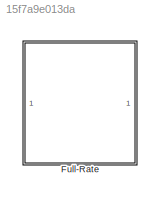
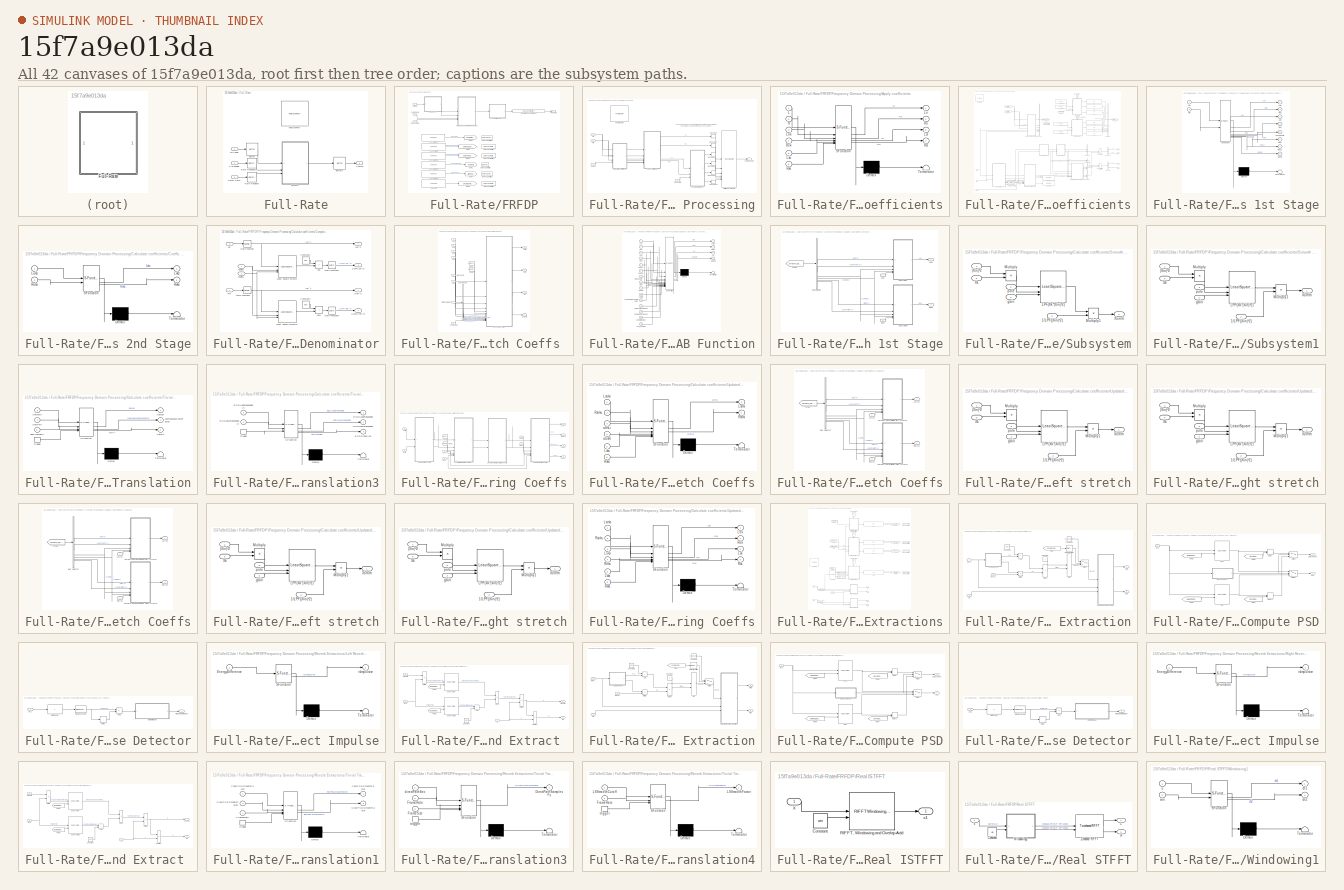
[diagram: thumbnail index - all 42 canvases of the model, root first then tree order]
MODEL slx_15f7a9e013da
KIND library
CONFIG AbsTol = auto
CONFIG EnableMultiTasking = off
CONFIG FixedStep = auto
CONFIG MaxStep = auto
CONFIG MinStep = auto
CONFIG RelTol = 1e-3
CONFIG SampleTimeConstraint = Unconstrained
CONFIG SolverName = VariableStepAuto
CONFIG StartTime = 0.0
CONFIG StopTime = 10.0
BLOCK [SubSystem] Full-Rate
BLOCK [Buffer] Full-Rate/Buffer
  N = configStruct.overlap
  OutputFrames = off
BLOCK [Buffer] Full-Rate/Buffer1
  N = configStruct.frameSize
  OutputFrames = off
BLOCK [Inport] Full-Rate/CAE Enable
  Port = 2
BLOCK [Outport] Full-Rate/Comps
  VectorParamsAs1DForOutWhenUnconnected = off
BLOCK [Inport] Full-Rate/Decay Rate
  Port = 3
BLOCK [SubSystem] Full-Rate/FRFDP
  FunctionWithSeparateData = on
  RTWSystemCode = Nonreusable function
  TreatAsAtomicUnit = on
BLOCK [Inport] Full-Rate/FRFDP/CAE Enable
  Port = 2
BLOCK [Inport] Full-Rate/FRFDP/Decay Rate
  Port = 3
BLOCK [Outport] Full-Rate/FRFDP/FRComps
BLOCK [SubSystem] Full-Rate/FRFDP/Frequency Domain Processing
BLOCK [SubSystem] Full-Rate/FRFDP/Frequency Domain Processing/Apply coefficients
  ErrorFcn = Stateflow.Translate.translate
  PermitHierarchicalResolution = ExplicitOnly
  SFBlockType = MATLAB Function
  TreatAsAtomicUnit = on
BLOCK [Demux] Full-Rate/FRFDP/Frequency Domain Processing/Apply coefficients/ Demux 
  Outputs = 1
BLOCK [S-Function] Full-Rate/FRFDP/Frequency Domain Processing/Apply coefficients/ SFunction 
  EnableBusSupport = off
  FunctionName = sf_sfun
  PortCounts = [6 5]
  SFcnIsStateOwnerBlock = off
  SFunctionDeploymentMode = off
  Tag = Stateflow S-Function 16
BLOCK [Terminator] Full-Rate/FRFDP/Frequency Domain Processing/Apply coefficients/ Terminator 
BLOCK [Inport] Full-Rate/FRFDP/Frequency Domain Processing/Apply coefficients/L
BLOCK [Outport] Full-Rate/FRFDP/Frequency Domain Processing/Apply coefficients/Lo
  VectorParamsAs1DForOutWhenUnconnected = off
BLOCK [Inport] Full-Rate/FRFDP/Frequency Domain Processing/Apply coefficients/Lok
  Port = 3
BLOCK [Outport] Full-Rate/FRFDP/Frequency Domain Processing/Apply coefficients/Lsr
  Port = 3
  VectorParamsAs1DForOutWhenUnconnected = off
BLOCK [Inport] Full-Rate/FRFDP/Frequency Domain Processing/Apply coefficients/Lxk
  Port = 5
BLOCK [Inport] Full-Rate/FRFDP/Frequency Domain Processing/Apply coefficients/R
  Port = 2
BLOCK [Outport] Full-Rate/FRFDP/Frequency Domain Processing/Apply coefficients/Ro
  Port = 2
  VectorParamsAs1DForOutWhenUnconnected = off
BLOCK [Inport] Full-Rate/FRFDP/Frequency Domain Processing/Apply coefficients/Rok
  Port = 4
BLOCK [Outport] Full-Rate/FRFDP/Frequency Domain Processing/Apply coefficients/Rsr
  Port = 4
  VectorParamsAs1DForOutWhenUnconnected = off
BLOCK [Inport] Full-Rate/FRFDP/Frequency Domain Processing/Apply coefficients/Rxk
  Port = 6
BLOCK [Inport] Full-Rate/FRFDP/Frequency Domain Processing/CAE on
  Port = 3
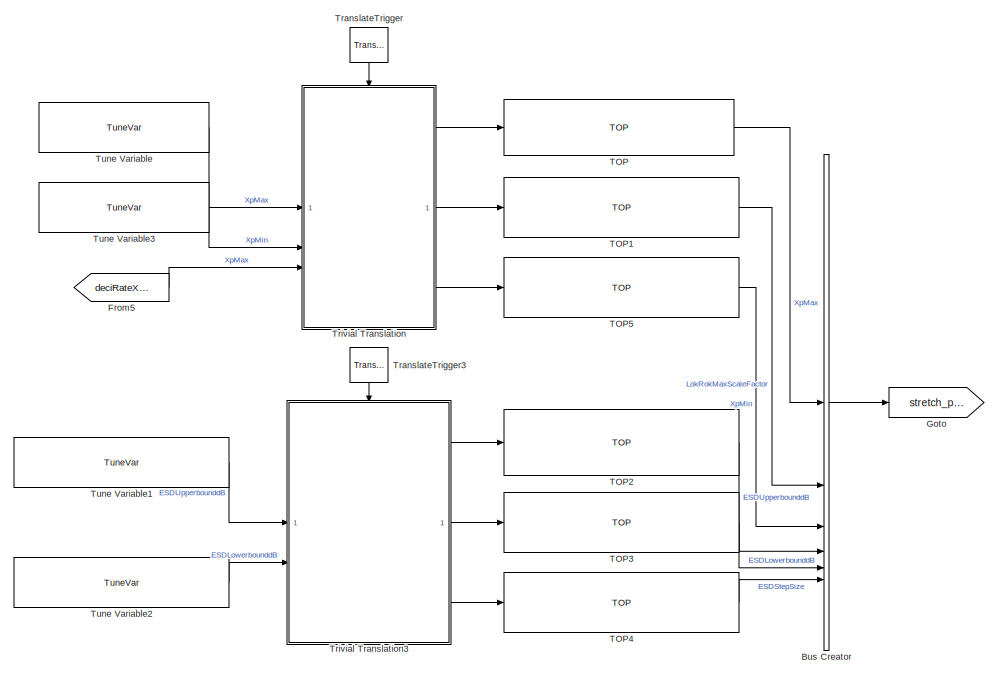
[diagram: Full-Rate/FRFDP/Frequency Domain Processing/Calculate coefficients - part 1/5, top right region]
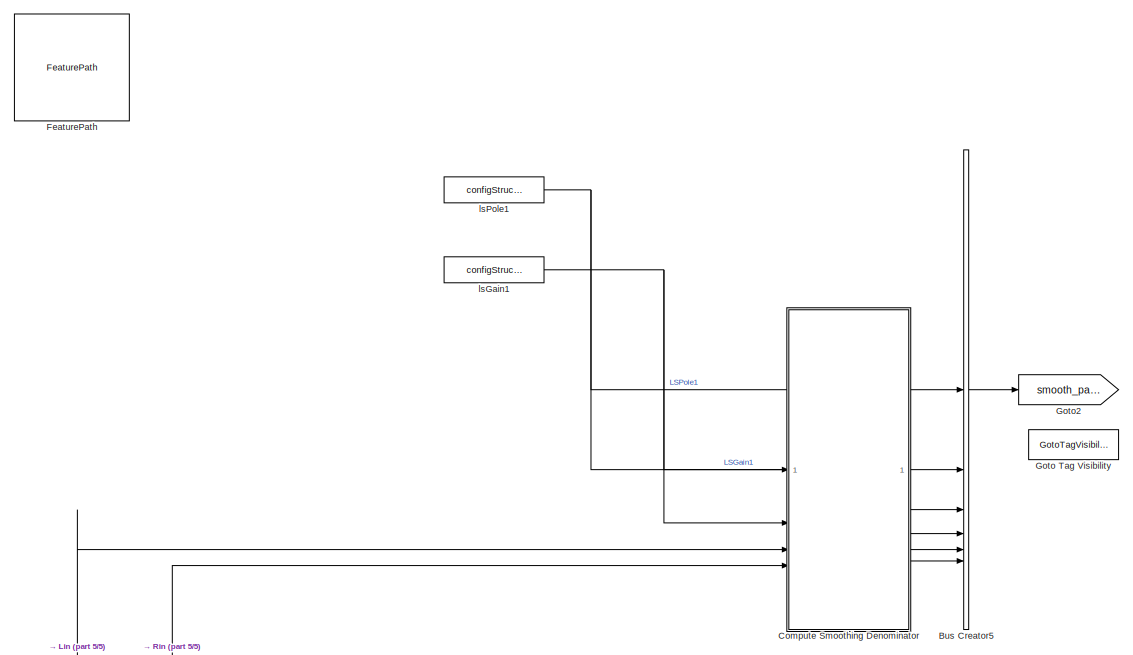
[diagram: Full-Rate/FRFDP/Frequency Domain Processing/Calculate coefficients - part 2/5, top left region]
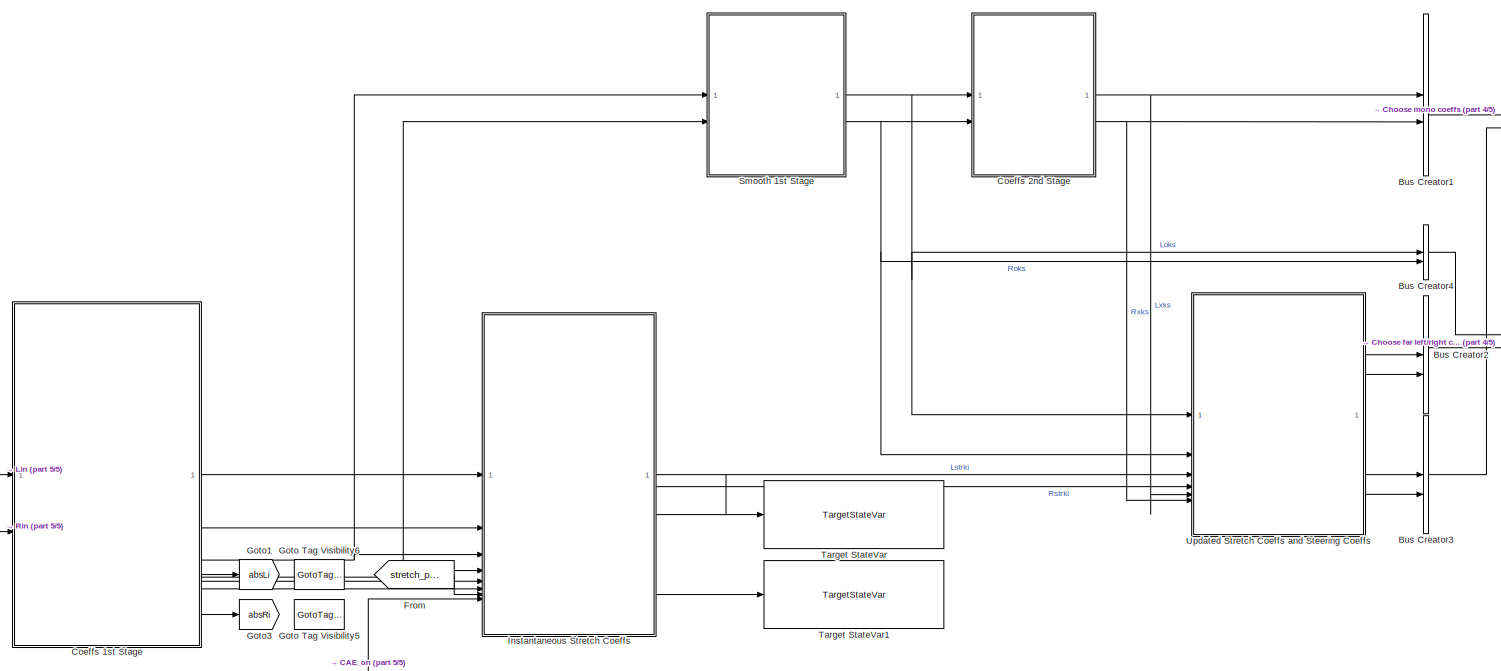
[diagram: Full-Rate/FRFDP/Frequency Domain Processing/Calculate coefficients - part 3/5, bottom center region]
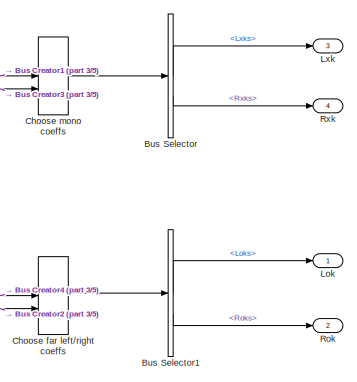
[diagram: Full-Rate/FRFDP/Frequency Domain Processing/Calculate coefficients - part 4/5, middle right region]
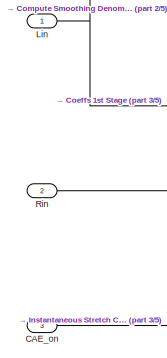
[diagram: Full-Rate/FRFDP/Frequency Domain Processing/Calculate coefficients - part 5/5, bottom left region]
BLOCK [SubSystem] Full-Rate/FRFDP/Frequency Domain Processing/Calculate coefficients
BLOCK [BusCreator] Full-Rate/FRFDP/Frequency Domain Processing/Calculate coefficients/Bus Creator
  DisplayOption = bar
  InheritFromInputs = on
  Inputs = 6
BLOCK [BusCreator] Full-Rate/FRFDP/Frequency Domain Processing/Calculate coefficients/Bus Creator1
  DisplayOption = bar
  InheritFromInputs = on
  Inputs = 2
BLOCK [BusCreator] Full-Rate/FRFDP/Frequency Domain Processing/Calculate coefficients/Bus Creator2
  DisplayOption = bar
  InheritFromInputs = on
  Inputs = 2
BLOCK [BusCreator] Full-Rate/FRFDP/Frequency Domain Processing/Calculate coefficients/Bus Creator3
  DisplayOption = bar
  InheritFromInputs = on
  Inputs = 2
BLOCK [BusCreator] Full-Rate/FRFDP/Frequency Domain Processing/Calculate coefficients/Bus Creator4
  DisplayOption = bar
  InheritFromInputs = on
  Inputs = 2
BLOCK [BusCreator] Full-Rate/FRFDP/Frequency Domain Processing/Calculate coefficients/Bus Creator5
  DisplayOption = bar
  InheritFromInputs = on
  Inputs = 6
BLOCK [BusSelector] Full-Rate/FRFDP/Frequency Domain Processing/Calculate coefficients/Bus Selector
  OutputSignals = Lxks,Rxks
BLOCK [BusSelector] Full-Rate/FRFDP/Frequency Domain Processing/Calculate coefficients/Bus Selector1
  OutputSignals = Loks,Roks
BLOCK [Inport] Full-Rate/FRFDP/Frequency Domain Processing/Calculate coefficients/CAE_on
  Port = 3
BLOCK [VariantSource] Full-Rate/FRFDP/Frequency Domain Processing/Calculate coefficients/Choose far left//right coeffs
  VariantActivationTime = update diagram analyze all choices
BLOCK [VariantSource] Full-Rate/FRFDP/Frequency Domain Processing/Calculate coefficients/Choose mono coeffs
  VariantActivationTime = update diagram analyze all choices
BLOCK [SubSystem] Full-Rate/FRFDP/Frequency Domain Processing/Calculate coefficients/Coeffs 1st Stage
  ErrorFcn = Stateflow.Translate.translate
  PermitHierarchicalResolution = ExplicitOnly
  SFBlockType = MATLAB Function
  TreatAsAtomicUnit = on
BLOCK [Demux] Full-Rate/FRFDP/Frequency Domain Processing/Calculate coefficients/Coeffs 1st Stage/ Demux 
  Outputs = 1
BLOCK [S-Function] Full-Rate/FRFDP/Frequency Domain Processing/Calculate coefficients/Coeffs 1st Stage/ SFunction 
  EnableBusSupport = off
  FunctionName = sf_sfun
  PortCounts = [2 9]
  SFcnIsStateOwnerBlock = off
  SFunctionDeploymentMode = off
  Tag = Stateflow S-Function 17
BLOCK [Terminator] Full-Rate/FRFDP/Frequency Domain Processing/Calculate coefficients/Coeffs 1st Stage/ Terminator 
BLOCK [Inport] Full-Rate/FRFDP/Frequency Domain Processing/Calculate coefficients/Coeffs 1st Stage/Lin
BLOCK [Outport] Full-Rate/FRFDP/Frequency Domain Processing/Calculate coefficients/Coeffs 1st Stage/Lok
  Port = 3
  VectorParamsAs1DForOutWhenUnconnected = off
BLOCK [Outport] Full-Rate/FRFDP/Frequency Domain Processing/Calculate coefficients/Coeffs 1st Stage/Lxk
  VectorParamsAs1DForOutWhenUnconnected = off
BLOCK [Inport] Full-Rate/FRFDP/Frequency Domain Processing/Calculate coefficients/Coeffs 1st Stage/Rin
  Port = 2
BLOCK [Outport] Full-Rate/FRFDP/Frequency Domain Processing/Calculate coefficients/Coeffs 1st Stage/Rok
  Port = 4
  VectorParamsAs1DForOutWhenUnconnected = off
BLOCK [Outport] Full-Rate/FRFDP/Frequency Domain Processing/Calculate coefficients/Coeffs 1st Stage/Rxk
  Port = 2
  VectorParamsAs1DForOutWhenUnconnected = off
BLOCK [Outport] Full-Rate/FRFDP/Frequency Domain Processing/Calculate coefficients/Coeffs 1st Stage/SPS
  Port = 6
  VectorParamsAs1DForOutWhenUnconnected = off
BLOCK [Outport] Full-Rate/FRFDP/Frequency Domain Processing/Calculate coefficients/Coeffs 1st Stage/absLi
  Port = 7
  VectorParamsAs1DForOutWhenUnconnected = off
BLOCK [Outport] Full-Rate/FRFDP/Frequency Domain Processing/Calculate coefficients/Coeffs 1st Stage/absRi
  Port = 8
  VectorParamsAs1DForOutWhenUnconnected = off
BLOCK [Outport] Full-Rate/FRFDP/Frequency Domain Processing/Calculate coefficients/Coeffs 1st Stage/minAbsLiRi
  Port = 5
  VectorParamsAs1DForOutWhenUnconnected = off
BLOCK [SubSystem] Full-Rate/FRFDP/Frequency Domain Processing/Calculate coefficients/Coeffs 2nd Stage
  ErrorFcn = Stateflow.Translate.translate
  PermitHierarchicalResolution = ExplicitOnly
  SFBlockType = MATLAB Function
  TreatAsAtomicUnit = on
BLOCK [Demux] Full-Rate/FRFDP/Frequency Domain Processing/Calculate coefficients/Coeffs 2nd Stage/ Demux 
  Outputs = 1
BLOCK [S-Function] Full-Rate/FRFDP/Frequency Domain Processing/Calculate coefficients/Coeffs 2nd Stage/ SFunction 
  EnableBusSupport = off
  FunctionName = sf_sfun
  PortCounts = [2 3]
  SFcnIsStateOwnerBlock = off
  SFunctionDeploymentMode = off
  Tag = Stateflow S-Function 18
BLOCK [Terminator] Full-Rate/FRFDP/Frequency Domain Processing/Calculate coefficients/Coeffs 2nd Stage/ Terminator 
BLOCK [Inport] Full-Rate/FRFDP/Frequency Domain Processing/Calculate coefficients/Coeffs 2nd Stage/Loks
BLOCK [Outport] Full-Rate/FRFDP/Frequency Domain Processing/Calculate coefficients/Coeffs 2nd Stage/Lxks
  VectorParamsAs1DForOutWhenUnconnected = off
BLOCK [Inport] Full-Rate/FRFDP/Frequency Domain Processing/Calculate coefficients/Coeffs 2nd Stage/Roks
  Port = 2
BLOCK [Outport] Full-Rate/FRFDP/Frequency Domain Processing/Calculate coefficients/Coeffs 2nd Stage/Rxks
  Port = 2
  VectorParamsAs1DForOutWhenUnconnected = off
BLOCK [SubSystem] Full-Rate/FRFDP/Frequency Domain Processing/Calculate coefficients/Compute Smoothing Denominator
BLOCK [Outport] Full-Rate/FRFDP/Frequency Domain Processing/Calculate coefficients/Compute Smoothing Denominator/1//LPF(|Lin|^2)
  Port = 3
  VectorParamsAs1DForOutWhenUnconnected = off
BLOCK [Outport] Full-Rate/FRFDP/Frequency Domain Processing/Calculate coefficients/Compute Smoothing Denominator/1//LPF(|Rin|^2)
  Port = 4
  VectorParamsAs1DForOutWhenUnconnected = off
BLOCK [Sum] Full-Rate/FRFDP/Frequency Domain Processing/Calculate coefficients/Compute Smoothing Denominator/Add
  IconShape = rectangular
BLOCK [Sum] Full-Rate/FRFDP/Frequency Domain Processing/Calculate coefficients/Compute Smoothing Denominator/Add1
  IconShape = rectangular
BLOCK [Constant] Full-Rate/FRFDP/Frequency Domain Processing/Calculate coefficients/Compute Smoothing Denominator/Constant1
  OutDataTypeStr = single
  Value = eps
BLOCK [Constant] Full-Rate/FRFDP/Frequency Domain Processing/Calculate coefficients/Compute Smoothing Denominator/Constant2
  OutDataTypeStr = single
  Value = eps
BLOCK [Reference] Full-Rate/FRFDP/Frequency Domain Processing/Calculate coefficients/Compute Smoothing Denominator/Least Square Smooth  REF=LeastSquareSmooth/LeastSquareSmooth
  SourceBlock = LeastSquareSmooth/LeastSquareSmooth
  SourceType = Least Squares Smooth
BLOCK [Reference] Full-Rate/FRFDP/Frequency Domain Processing/Calculate coefficients/Compute Smoothing Denominator/Least Square Smooth1  REF=LeastSquareSmooth/LeastSquareSmooth
  SourceBlock = LeastSquareSmooth/LeastSquareSmooth
  SourceType = Least Squares Smooth
BLOCK [Inport] Full-Rate/FRFDP/Frequency Domain Processing/Calculate coefficients/Compute Smoothing Denominator/Lin
  Port = 3
BLOCK [Math] Full-Rate/FRFDP/Frequency Domain Processing/Calculate coefficients/Compute Smoothing Denominator/Math Function
  Operator = magnitude^2
  SignedPower = on
BLOCK [Math] Full-Rate/FRFDP/Frequency Domain Processing/Calculate coefficients/Compute Smoothing Denominator/Math Function1
  Operator = magnitude^2
  SignedPower = on
BLOCK [Math] Full-Rate/FRFDP/Frequency Domain Processing/Calculate coefficients/Compute Smoothing Denominator/Math Function2
  Operator = reciprocal
  SignedPower = on
BLOCK [Math] Full-Rate/FRFDP/Frequency Domain Processing/Calculate coefficients/Compute Smoothing Denominator/Math Function3
  Operator = reciprocal
  SignedPower = on
BLOCK [Inport] Full-Rate/FRFDP/Frequency Domain Processing/Calculate coefficients/Compute Smoothing Denominator/Rin
  Port = 4
BLOCK [Inport] Full-Rate/FRFDP/Frequency Domain Processing/Calculate coefficients/Compute Smoothing Denominator/lsgain1
  Port = 2
BLOCK [Inport] Full-Rate/FRFDP/Frequency Domain Processing/Calculate coefficients/Compute Smoothing Denominator/lspole1
BLOCK [Outport] Full-Rate/FRFDP/Frequency Domain Processing/Calculate coefficients/Compute Smoothing Denominator/|Lin|^2
  VectorParamsAs1DForOutWhenUnconnected = off
BLOCK [Outport] Full-Rate/FRFDP/Frequency Domain Processing/Calculate coefficients/Compute Smoothing Denominator/|Rin|^2
  Port = 2
  VectorParamsAs1DForOutWhenUnconnected = off
BLOCK [Reference] Full-Rate/FRFDP/Frequency Domain Processing/Calculate coefficients/FeaturePath  REF=FeaturePath/FeaturePath
  SourceBlock = FeaturePath/FeaturePath
  SourceProductName = Bose Talaria
  SourceType = Talaria Feature Path
BLOCK [From] Full-Rate/FRFDP/Frequency Domain Processing/Calculate coefficients/From
  GotoTag = stretch_params
BLOCK [From] Full-Rate/FRFDP/Frequency Domain Processing/Calculate coefficients/From5
  GotoTag = deciRateXpMax
  TagVisibility = scoped
BLOCK [Goto] Full-Rate/FRFDP/Frequency Domain Processing/Calculate coefficients/Goto
  GotoTag = stretch_params
BLOCK [GotoTagVisibility] Full-Rate/FRFDP/Frequency Domain Processing/Calculate coefficients/Goto Tag Visibility
  GotoTag = smooth_params
BLOCK [GotoTagVisibility] Full-Rate/FRFDP/Frequency Domain Processing/Calculate coefficients/Goto Tag Visibility5
  GotoTag = absLi
BLOCK [GotoTagVisibility] Full-Rate/FRFDP/Frequency Domain Processing/Calculate coefficients/Goto Tag Visibility6
  GotoTag = absRi
BLOCK [Goto] Full-Rate/FRFDP/Frequency Domain Processing/Calculate coefficients/Goto1
  GotoTag = absLi
  TagVisibility = scoped
BLOCK [Goto] Full-Rate/FRFDP/Frequency Domain Processing/Calculate coefficients/Goto2
  GotoTag = smooth_params
  TagVisibility = scoped
BLOCK [Goto] Full-Rate/FRFDP/Frequency Domain Processing/Calculate coefficients/Goto3
  GotoTag = absRi
  TagVisibility = scoped
BLOCK [SubSystem] Full-Rate/FRFDP/Frequency Domain Processing/Calculate coefficients/Instantaneous Stretch Coeffs 
  RTWSystemCode = Inline
BLOCK [BusSelector] Full-Rate/FRFDP/Frequency Domain Processing/Calculate coefficients/Instantaneous Stretch Coeffs /Bus Selector
  OutputSignals = XpMax,XpMin,LokRokMaxScaleFactor,ESDLowerbounddB,ESDUpperbounddB,ESDStepSize
BLOCK [Outport] Full-Rate/FRFDP/Frequency Domain Processing/Calculate coefficients/Instantaneous Stretch Coeffs /ESDdB
  Port = 4
  VectorParamsAs1DForOutWhenUnconnected = off
BLOCK [From] Full-Rate/FRFDP/Frequency Domain Processing/Calculate coefficients/Instantaneous Stretch Coeffs /From
  GotoTag = absLi
  TagVisibility = scoped
BLOCK [From] Full-Rate/FRFDP/Frequency Domain Processing/Calculate coefficients/Instantaneous Stretch Coeffs /From1
  GotoTag = absRi
  TagVisibility = scoped
BLOCK [Inport] Full-Rate/FRFDP/Frequency Domain Processing/Calculate coefficients/Instantaneous Stretch Coeffs /Lok
  Port = 3
BLOCK [Outport] Full-Rate/FRFDP/Frequency Domain Processing/Calculate coefficients/Instantaneous Stretch Coeffs /Lstrk
  VectorParamsAs1DForOutWhenUnconnected = off
BLOCK [Inport] Full-Rate/FRFDP/Frequency Domain Processing/Calculate coefficients/Instantaneous Stretch Coeffs /Lxk
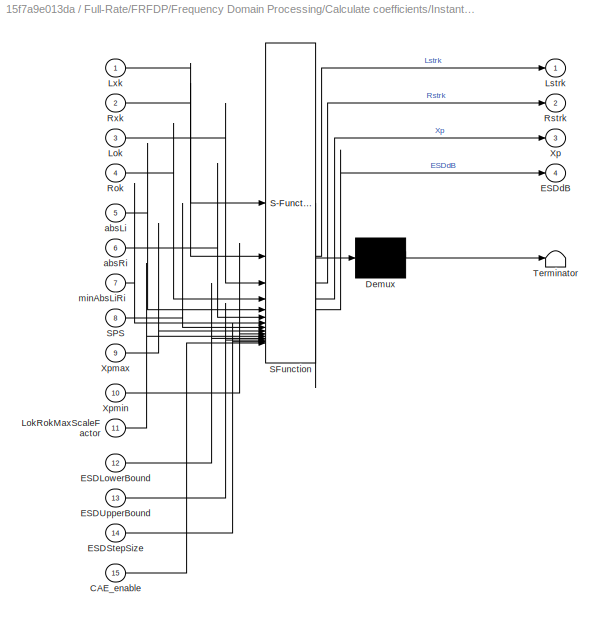
BLOCK [SubSystem] Full-Rate/FRFDP/Frequency Domain Processing/Calculate coefficients/Instantaneous Stretch Coeffs /MATLAB Function
  ErrorFcn = Stateflow.Translate.translate
  PermitHierarchicalResolution = ExplicitOnly
  SFBlockType = MATLAB Function
  TreatAsAtomicUnit = on
BLOCK [Demux] Full-Rate/FRFDP/Frequency Domain Processing/Calculate coefficients/Instantaneous Stretch Coeffs /MATLAB Function/ Demux 
  Outputs = 1
BLOCK [S-Function] Full-Rate/FRFDP/Frequency Domain Processing/Calculate coefficients/Instantaneous Stretch Coeffs /MATLAB Function/ SFunction 
  EnableBusSupport = off
  FunctionName = sf_sfun
  PortCounts = [15 5]
  SFcnIsStateOwnerBlock = off
  SFunctionDeploymentMode = off
  Tag = Stateflow S-Function 22
BLOCK [Terminator] Full-Rate/FRFDP/Frequency Domain Processing/Calculate coefficients/Instantaneous Stretch Coeffs /MATLAB Function/ Terminator 
BLOCK [Inport] Full-Rate/FRFDP/Frequency Domain Processing/Calculate coefficients/Instantaneous Stretch Coeffs /MATLAB Function/CAE_enable
  Port = 15
BLOCK [Inport] Full-Rate/FRFDP/Frequency Domain Processing/Calculate coefficients/Instantaneous Stretch Coeffs /MATLAB Function/ESDLowerBound
  Port = 12
BLOCK [Inport] Full-Rate/FRFDP/Frequency Domain Processing/Calculate coefficients/Instantaneous Stretch Coeffs /MATLAB Function/ESDStepSize
  Port = 14
BLOCK [Inport] Full-Rate/FRFDP/Frequency Domain Processing/Calculate coefficients/Instantaneous Stretch Coeffs /MATLAB Function/ESDUpperBound
  Port = 13
BLOCK [Outport] Full-Rate/FRFDP/Frequency Domain Processing/Calculate coefficients/Instantaneous Stretch Coeffs /MATLAB Function/ESDdB
  Port = 4
  VectorParamsAs1DForOutWhenUnconnected = off
BLOCK [Inport] Full-Rate/FRFDP/Frequency Domain Processing/Calculate coefficients/Instantaneous Stretch Coeffs /MATLAB Function/Lok
  Port = 3
BLOCK [Inport] Full-Rate/FRFDP/Frequency Domain Processing/Calculate coefficients/Instantaneous Stretch Coeffs /MATLAB Function/LokRokMaxScaleFactor
  Port = 11
BLOCK [Outport] Full-Rate/FRFDP/Frequency Domain Processing/Calculate coefficients/Instantaneous Stretch Coeffs /MATLAB Function/Lstrk
  VectorParamsAs1DForOutWhenUnconnected = off
BLOCK [Inport] Full-Rate/FRFDP/Frequency Domain Processing/Calculate coefficients/Instantaneous Stretch Coeffs /MATLAB Function/Lxk
BLOCK [Inport] Full-Rate/FRFDP/Frequency Domain Processing/Calculate coefficients/Instantaneous Stretch Coeffs /MATLAB Function/Rok
  Port = 4
BLOCK [Outport] Full-Rate/FRFDP/Frequency Domain Processing/Calculate coefficients/Instantaneous Stretch Coeffs /MATLAB Function/Rstrk
  Port = 2
  VectorParamsAs1DForOutWhenUnconnected = off
BLOCK [Inport] Full-Rate/FRFDP/Frequency Domain Processing/Calculate coefficients/Instantaneous Stretch Coeffs /MATLAB Function/Rxk
  Port = 2
BLOCK [Inport] Full-Rate/FRFDP/Frequency Domain Processing/Calculate coefficients/Instantaneous Stretch Coeffs /MATLAB Function/SPS
  Port = 8
BLOCK [Outport] Full-Rate/FRFDP/Frequency Domain Processing/Calculate coefficients/Instantaneous Stretch Coeffs /MATLAB Function/Xp
  Port = 3
  VectorParamsAs1DForOutWhenUnconnected = off
BLOCK [Inport] Full-Rate/FRFDP/Frequency Domain Processing/Calculate coefficients/Instantaneous Stretch Coeffs /MATLAB Function/Xpmax
  Port = 9
BLOCK [Inport] Full-Rate/FRFDP/Frequency Domain Processing/Calculate coefficients/Instantaneous Stretch Coeffs /MATLAB Function/Xpmin
  Port = 10
BLOCK [Inport] Full-Rate/FRFDP/Frequency Domain Processing/Calculate coefficients/Instantaneous Stretch Coeffs /MATLAB Function/absLi
  Port = 5
BLOCK [Inport] Full-Rate/FRFDP/Frequency Domain Processing/Calculate coefficients/Instantaneous Stretch Coeffs /MATLAB Function/absRi
  Port = 6
BLOCK [Inport] Full-Rate/FRFDP/Frequency Domain Processing/Calculate coefficients/Instantaneous Stretch Coeffs /MATLAB Function/minAbsLiRi
  Port = 7
BLOCK [Inport] Full-Rate/FRFDP/Frequency Domain Processing/Calculate coefficients/Instantaneous Stretch Coeffs /Rok
  Port = 4
BLOCK [Outport] Full-Rate/FRFDP/Frequency Domain Processing/Calculate coefficients/Instantaneous Stretch Coeffs /Rstrk
  Port = 2
  VectorParamsAs1DForOutWhenUnconnected = off
BLOCK [Inport] Full-Rate/FRFDP/Frequency Domain Processing/Calculate coefficients/Instantaneous Stretch Coeffs /Rxk
  Port = 2
BLOCK [Inport] Full-Rate/FRFDP/Frequency Domain Processing/Calculate coefficients/Instantaneous Stretch Coeffs /SPS
  Port = 6
BLOCK [Outport] Full-Rate/FRFDP/Frequency Domain Processing/Calculate coefficients/Instantaneous Stretch Coeffs /Xp
  Port = 3
  VectorParamsAs1DForOutWhenUnconnected = off
BLOCK [Inport] Full-Rate/FRFDP/Frequency Domain Processing/Calculate coefficients/Instantaneous Stretch Coeffs /caeEnable
  Port = 8
BLOCK [Inport] Full-Rate/FRFDP/Frequency Domain Processing/Calculate coefficients/Instantaneous Stretch Coeffs /minAbsLiRi
  Port = 5
BLOCK [Inport] Full-Rate/FRFDP/Frequency Domain Processing/Calculate coefficients/Instantaneous Stretch Coeffs /stretch params
  Port = 7
BLOCK [Inport] Full-Rate/FRFDP/Frequency Domain Processing/Calculate coefficients/Lin
BLOCK [Outport] Full-Rate/FRFDP/Frequency Domain Processing/Calculate coefficients/Lok
  VectorParamsAs1DForOutWhenUnconnected = off
BLOCK [Outport] Full-Rate/FRFDP/Frequency Domain Processing/Calculate coefficients/Lxk
  Port = 3
  VectorParamsAs1DForOutWhenUnconnected = off
BLOCK [Inport] Full-Rate/FRFDP/Frequency Domain Processing/Calculate coefficients/Rin
  Port = 2
BLOCK [Outport] Full-Rate/FRFDP/Frequency Domain Processing/Calculate coefficients/Rok
  Port = 2
  VectorParamsAs1DForOutWhenUnconnected = off
BLOCK [Outport] Full-Rate/FRFDP/Frequency Domain Processing/Calculate coefficients/Rxk
  Port = 4
  VectorParamsAs1DForOutWhenUnconnected = off
BLOCK [SubSystem] Full-Rate/FRFDP/Frequency Domain Processing/Calculate coefficients/Smooth 1st Stage
BLOCK [BusSelector] Full-Rate/FRFDP/Frequency Domain Processing/Calculate coefficients/Smooth 1st Stage/Bus Selector
  OutputSignals = |Lin|^2,1/LPF(|Lin|^2),LSPole1,LSGain1,|Rin|^2,1/LPF(|Rin|^2)
BLOCK [From] Full-Rate/FRFDP/Frequency Domain Processing/Calculate coefficients/Smooth 1st Stage/From
  GotoTag = smooth_params
  TagVisibility = scoped
BLOCK [Inport] Full-Rate/FRFDP/Frequency Domain Processing/Calculate coefficients/Smooth 1st Stage/Loki
BLOCK [Outport] Full-Rate/FRFDP/Frequency Domain Processing/Calculate coefficients/Smooth 1st Stage/Loks
  VectorParamsAs1DForOutWhenUnconnected = off
BLOCK [Inport] Full-Rate/FRFDP/Frequency Domain Processing/Calculate coefficients/Smooth 1st Stage/Roki
  Port = 2
BLOCK [Outport] Full-Rate/FRFDP/Frequency Domain Processing/Calculate coefficients/Smooth 1st Stage/Roks
  Port = 2
  VectorParamsAs1DForOutWhenUnconnected = off
BLOCK [SubSystem] Full-Rate/FRFDP/Frequency Domain Processing/Calculate coefficients/Smooth 1st Stage/Subsystem
BLOCK [Inport] Full-Rate/FRFDP/Frequency Domain Processing/Calculate coefficients/Smooth 1st Stage/Subsystem/1//LPF(|Xin|^2)
  Port = 2
BLOCK [Reference] Full-Rate/FRFDP/Frequency Domain Processing/Calculate coefficients/Smooth 1st Stage/Subsystem/LPF(Xk*|Xin|^2)  REF=LeastSquareSmooth/LeastSquareSmooth
  SourceBlock = LeastSquareSmooth/LeastSquareSmooth
  SourceType = Least Squares Smooth
BLOCK [Product] Full-Rate/FRFDP/Frequency Domain Processing/Calculate coefficients/Smooth 1st Stage/Subsystem/Multiply
BLOCK [Product] Full-Rate/FRFDP/Frequency Domain Processing/Calculate coefficients/Smooth 1st Stage/Subsystem/Multiply1
BLOCK [Inport] Full-Rate/FRFDP/Frequency Domain Processing/Calculate coefficients/Smooth 1st Stage/Subsystem/Xk
  Port = 5
BLOCK [Outport] Full-Rate/FRFDP/Frequency Domain Processing/Calculate coefficients/Smooth 1st Stage/Subsystem/Xsmth
  VectorParamsAs1DForOutWhenUnconnected = off
BLOCK [Inport] Full-Rate/FRFDP/Frequency Domain Processing/Calculate coefficients/Smooth 1st Stage/Subsystem/gain 
  Port = 4
BLOCK [Inport] Full-Rate/FRFDP/Frequency Domain Processing/Calculate coefficients/Smooth 1st Stage/Subsystem/pole
  Port = 3
BLOCK [Inport] Full-Rate/FRFDP/Frequency Domain Processing/Calculate coefficients/Smooth 1st Stage/Subsystem/|Xin|^2
BLOCK [SubSystem] Full-Rate/FRFDP/Frequency Domain Processing/Calculate coefficients/Smooth 1st Stage/Subsystem1
BLOCK [Inport] Full-Rate/FRFDP/Frequency Domain Processing/Calculate coefficients/Smooth 1st Stage/Subsystem1/1//LPF(|Xin|^2)
  Port = 2
BLOCK [Reference] Full-Rate/FRFDP/Frequency Domain Processing/Calculate coefficients/Smooth 1st Stage/Subsystem1/LPF(Xk*|Xin|^2)  REF=LeastSquareSmooth/LeastSquareSmooth
  SourceBlock = LeastSquareSmooth/LeastSquareSmooth
  SourceType = Least Squares Smooth
BLOCK [Product] Full-Rate/FRFDP/Frequency Domain Processing/Calculate coefficients/Smooth 1st Stage/Subsystem1/Multiply
BLOCK [Product] Full-Rate/FRFDP/Frequency Domain Processing/Calculate coefficients/Smooth 1st Stage/Subsystem1/Multiply1
BLOCK [Inport] Full-Rate/FRFDP/Frequency Domain Processing/Calculate coefficients/Smooth 1st Stage/Subsystem1/Xk
  Port = 5
BLOCK [Outport] Full-Rate/FRFDP/Frequency Domain Processing/Calculate coefficients/Smooth 1st Stage/Subsystem1/Xsmth
  VectorParamsAs1DForOutWhenUnconnected = off
BLOCK [Inport] Full-Rate/FRFDP/Frequency Domain Processing/Calculate coefficients/Smooth 1st Stage/Subsystem1/gain 
  Port = 4
BLOCK [Inport] Full-Rate/FRFDP/Frequency Domain Processing/Calculate coefficients/Smooth 1st Stage/Subsystem1/pole
  Port = 3
BLOCK [Inport] Full-Rate/FRFDP/Frequency Domain Processing/Calculate coefficients/Smooth 1st Stage/Subsystem1/|Xin|^2
BLOCK [Reference] Full-Rate/FRFDP/Frequency Domain Processing/Calculate coefficients/TOP  REF=TOP/TOP
  SourceBlock = TOP/TOP
  SourceProductName = Bose Talaria
  SourceType = Talaria Target Overlay Parameter
BLOCK [Reference] Full-Rate/FRFDP/Frequency Domain Processing/Calculate coefficients/TOP1  REF=TOP/TOP
  SourceBlock = TOP/TOP
  SourceProductName = Bose Talaria
  SourceType = Talaria Target Overlay Parameter
BLOCK [Reference] Full-Rate/FRFDP/Frequency Domain Processing/Calculate coefficients/TOP2  REF=TOP/TOP
  SourceBlock = TOP/TOP
  SourceProductName = Bose Talaria
  SourceType = Talaria Target Overlay Parameter
BLOCK [Reference] Full-Rate/FRFDP/Frequency Domain Processing/Calculate coefficients/TOP3  REF=TOP/TOP
  SourceBlock = TOP/TOP
  SourceProductName = Bose Talaria
  SourceType = Talaria Target Overlay Parameter
BLOCK [Reference] Full-Rate/FRFDP/Frequency Domain Processing/Calculate coefficients/TOP4  REF=TOP/TOP
  SourceBlock = TOP/TOP
  SourceProductName = Bose Talaria
  SourceType = Talaria Target Overlay Parameter
BLOCK [Reference] Full-Rate/FRFDP/Frequency Domain Processing/Calculate coefficients/TOP5  REF=TOP/TOP
  SourceBlock = TOP/TOP
  SourceProductName = Bose Talaria
  SourceType = Talaria Target Overlay Parameter
BLOCK [Reference] Full-Rate/FRFDP/Frequency Domain Processing/Calculate coefficients/Target StateVar  REF=StateVar/TargetStateVar
  SourceBlock = StateVar/TargetStateVar
  SourceProductName = Bose Talaria
  SourceType = Talaria Target State Variable
BLOCK [Reference] Full-Rate/FRFDP/Frequency Domain Processing/Calculate coefficients/Target StateVar1  REF=StateVar/TargetStateVar
  SourceBlock = StateVar/TargetStateVar
  SourceProductName = Bose Talaria
  SourceType = Talaria Target State Variable
BLOCK [Reference] Full-Rate/FRFDP/Frequency Domain Processing/Calculate coefficients/TranslateTrigger  REF=TuneVar/TranslateTrigger
  NameLocation = left
  SourceBlock = TuneVar/TranslateTrigger
  SourceProductName = Bose Talaria
  SourceType = Talaria Translate Trigger
BLOCK [Reference] Full-Rate/FRFDP/Frequency Domain Processing/Calculate coefficients/TranslateTrigger3  REF=TuneVar/TranslateTrigger
  NameLocation = left
  SourceBlock = TuneVar/TranslateTrigger
  SourceProductName = Bose Talaria
  SourceType = Talaria Translate Trigger
BLOCK [SubSystem] Full-Rate/FRFDP/Frequency Domain Processing/Calculate coefficients/Trivial Translation
  ErrorFcn = Stateflow.Translate.translate
  PermitHierarchicalResolution = ExplicitOnly
  SFBlockType = MATLAB Function
  TreatAsAtomicUnit = on
BLOCK [Demux] Full-Rate/FRFDP/Frequency Domain Processing/Calculate coefficients/Trivial Translation/ Demux 
  Outputs = 1
BLOCK [S-Function] Full-Rate/FRFDP/Frequency Domain Processing/Calculate coefficients/Trivial Translation/ SFunction 
  EnableBusSupport = off
  FunctionName = sf_sfun
  PortCounts = [4 4]
  SFcnIsStateOwnerBlock = off
  SFunctionDeploymentMode = off
  Tag = Stateflow S-Function 23
BLOCK [Terminator] Full-Rate/FRFDP/Frequency Domain Processing/Calculate coefficients/Trivial Translation/ Terminator 
BLOCK [Outport] Full-Rate/FRFDP/Frequency Domain Processing/Calculate coefficients/Trivial Translation/LokRokMaxScaleFactor
  Port = 2
  VectorParamsAs1DForOutWhenUnconnected = off
BLOCK [Outport] Full-Rate/FRFDP/Frequency Domain Processing/Calculate coefficients/Trivial Translation/XpMax
  VectorParamsAs1DForOutWhenUnconnected = off
BLOCK [Inport] Full-Rate/FRFDP/Frequency Domain Processing/Calculate coefficients/Trivial Translation/XpMaxIn
BLOCK [Outport] Full-Rate/FRFDP/Frequency Domain Processing/Calculate coefficients/Trivial Translation/XpMin
  Port = 3
  VectorParamsAs1DForOutWhenUnconnected = off
BLOCK [Inport] Full-Rate/FRFDP/Frequency Domain Processing/Calculate coefficients/Trivial Translation/XpMinIn
  Port = 2
BLOCK [Inport] Full-Rate/FRFDP/Frequency Domain Processing/Calculate coefficients/Trivial Translation/deciXpMaxIn
  Port = 3
BLOCK [TriggerPort] Full-Rate/FRFDP/Frequency Domain Processing/Calculate coefficients/Trivial Translation/trigger
  ShowOutputPort = on
  StatesWhenEnabling = held
  TriggerType = function-call
  VariantControl = Variant
BLOCK [SubSystem] Full-Rate/FRFDP/Frequency Domain Processing/Calculate coefficients/Trivial Translation3
  ErrorFcn = Stateflow.Translate.translate
  PermitHierarchicalResolution = ExplicitOnly
  SFBlockType = MATLAB Function
  TreatAsAtomicUnit = on
BLOCK [Demux] Full-Rate/FRFDP/Frequency Domain Processing/Calculate coefficients/Trivial Translation3/ Demux 
  Outputs = 1
BLOCK [S-Function] Full-Rate/FRFDP/Frequency Domain Processing/Calculate coefficients/Trivial Translation3/ SFunction 
  EnableBusSupport = off
  FunctionName = sf_sfun
  PortCounts = [3 4]
  SFcnIsStateOwnerBlock = off
  SFunctionDeploymentMode = off
  Tag = Stateflow S-Function 24
BLOCK [Terminator] Full-Rate/FRFDP/Frequency Domain Processing/Calculate coefficients/Trivial Translation3/ Terminator 
BLOCK [Outport] Full-Rate/FRFDP/Frequency Domain Processing/Calculate coefficients/Trivial Translation3/ESDLowerbounddB
  Port = 2
  VectorParamsAs1DForOutWhenUnconnected = off
BLOCK [Inport] Full-Rate/FRFDP/Frequency Domain Processing/Calculate coefficients/Trivial Translation3/ESDLowerbounddBIn
  Port = 2
BLOCK [Outport] Full-Rate/FRFDP/Frequency Domain Processing/Calculate coefficients/Trivial Translation3/ESDStepSize
  Port = 3
  VectorParamsAs1DForOutWhenUnconnected = off
BLOCK [Outport] Full-Rate/FRFDP/Frequency Domain Processing/Calculate coefficients/Trivial Translation3/ESDUpperbounddB
  VectorParamsAs1DForOutWhenUnconnected = off
BLOCK [Inport] Full-Rate/FRFDP/Frequency Domain Processing/Calculate coefficients/Trivial Translation3/ESDUpperbounddBIn
BLOCK [TriggerPort] Full-Rate/FRFDP/Frequency Domain Processing/Calculate coefficients/Trivial Translation3/trigger
  ShowOutputPort = on
  StatesWhenEnabling = held
  TriggerType = function-call
  VariantControl = Variant
BLOCK [Reference] Full-Rate/FRFDP/Frequency Domain Processing/Calculate coefficients/Tune Variable  REF=TuneVar/TuneVar
  Description = Maximum stretch factor - must be in range [0,1).
  SourceBlock = TuneVar/TuneVar
  SourceProductName = Bose Talaria
  SourceType = Talaria Tune Variable
BLOCK [Reference] Full-Rate/FRFDP/Frequency Domain Processing/Calculate coefficients/Tune Variable1  REF=TuneVar/TuneVar
  Description = Upper threshold on Excessive Stretch Detector (ESD) metric.
  SourceBlock = TuneVar/TuneVar
  SourceProductName = Bose Talaria
  SourceType = Talaria Tune Variable
BLOCK [Reference] Full-Rate/FRFDP/Frequency Domain Processing/Calculate coefficients/Tune Variable2  REF=TuneVar/TuneVar
  Description = Lower threshold on Excessive Stretch Detector (ESD) metric.
  SourceBlock = TuneVar/TuneVar
  SourceProductName = Bose Talaria
  SourceType = Talaria Tune Variable
BLOCK [Reference] Full-Rate/FRFDP/Frequency Domain Processing/Calculate coefficients/Tune Variable3  REF=TuneVar/TuneVar
  Description = Minimum stretch factor - must be in range [0,1)
  SourceBlock = TuneVar/TuneVar
  SourceProductName = Bose Talaria
  SourceType = Talaria Tune Variable
BLOCK [SubSystem] Full-Rate/FRFDP/Frequency Domain Processing/Calculate coefficients/Updated Stretch Coeffs and Steering Coeffs
  RTWSystemCode = Inline
BLOCK [From] Full-Rate/FRFDP/Frequency Domain Processing/Calculate coefficients/Updated Stretch Coeffs and Steering Coeffs/From
  GotoTag = absLi
  TagVisibility = scoped
BLOCK [From] Full-Rate/FRFDP/Frequency Domain Processing/Calculate coefficients/Updated Stretch Coeffs and Steering Coeffs/From1
  GotoTag = absRi
  TagVisibility = scoped
BLOCK [Inport] Full-Rate/FRFDP/Frequency Domain Processing/Calculate coefficients/Updated Stretch Coeffs and Steering Coeffs/Loks
BLOCK [Outport] Full-Rate/FRFDP/Frequency Domain Processing/Calculate coefficients/Updated Stretch Coeffs and Steering Coeffs/Loks+
  VectorParamsAs1DForOutWhenUnconnected = off
BLOCK [Inport] Full-Rate/FRFDP/Frequency Domain Processing/Calculate coefficients/Updated Stretch Coeffs and Steering Coeffs/Lstrk
  Port = 3
BLOCK [Inport] Full-Rate/FRFDP/Frequency Domain Processing/Calculate coefficients/Updated Stretch Coeffs and Steering Coeffs/Lxks
  Port = 5
BLOCK [Outport] Full-Rate/FRFDP/Frequency Domain Processing/Calculate coefficients/Updated Stretch Coeffs and Steering Coeffs/Lxks-
  Port = 3
  VectorParamsAs1DForOutWhenUnconnected = off
BLOCK [SubSystem] Full-Rate/FRFDP/Frequency Domain Processing/Calculate coefficients/Updated Stretch Coeffs and Steering Coeffs/Normalize Stretch Coeffs
  ErrorFcn = Stateflow.Translate.translate
  PermitHierarchicalResolution = ExplicitOnly
  SFBlockType = MATLAB Function
  TreatAsAtomicUnit = on
BLOCK [Demux] Full-Rate/FRFDP/Frequency Domain Processing/Calculate coefficients/Updated Stretch Coeffs and Steering Coeffs/Normalize Stretch Coeffs/ Demux 
  Outputs = 1
BLOCK [S-Function] Full-Rate/FRFDP/Frequency Domain Processing/Calculate coefficients/Updated Stretch Coeffs and Steering Coeffs/Normalize Stretch Coeffs/ SFunction 
  EnableBusSupport = off
  FunctionName = sf_sfun
  PortCounts = [6 3]
  SFcnIsStateOwnerBlock = off
  SFunctionDeploymentMode = off
  Tag = Stateflow S-Function 25
BLOCK [Terminator] Full-Rate/FRFDP/Frequency Domain Processing/Calculate coefficients/Updated Stretch Coeffs and Steering Coeffs/Normalize Stretch Coeffs/ Terminator 
BLOCK [Outport] Full-Rate/FRFDP/Frequency Domain Processing/Calculate coefficients/Updated Stretch Coeffs and Steering Coeffs/Normalize Stretch Coeffs/Lstrki
  VectorParamsAs1DForOutWhenUnconnected = off
BLOCK [Inport] Full-Rate/FRFDP/Frequency Domain Processing/Calculate coefficients/Updated Stretch Coeffs and Steering Coeffs/Normalize Stretch Coeffs/Lstrks
BLOCK [Inport] Full-Rate/FRFDP/Frequency Domain Processing/Calculate coefficients/Updated Stretch Coeffs and Steering Coeffs/Normalize Stretch Coeffs/Lxks
  Port = 5
BLOCK [Outport] Full-Rate/FRFDP/Frequency Domain Processing/Calculate coefficients/Updated Stretch Coeffs and Steering Coeffs/Normalize Stretch Coeffs/Rstrki
  Port = 2
  VectorParamsAs1DForOutWhenUnconnected = off
BLOCK [Inport] Full-Rate/FRFDP/Frequency Domain Processing/Calculate coefficients/Updated Stretch Coeffs and Steering Coeffs/Normalize Stretch Coeffs/Rstrks
  Port = 2
BLOCK [Inport] Full-Rate/FRFDP/Frequency Domain Processing/Calculate coefficients/Updated Stretch Coeffs and Steering Coeffs/Normalize Stretch Coeffs/Rxks
  Port = 6
BLOCK [Inport] Full-Rate/FRFDP/Frequency Domain Processing/Calculate coefficients/Updated Stretch Coeffs and Steering Coeffs/Normalize Stretch Coeffs/absLi
  Port = 3
BLOCK [Inport] Full-Rate/FRFDP/Frequency Domain Processing/Calculate coefficients/Updated Stretch Coeffs and Steering Coeffs/Normalize Stretch Coeffs/absRi
  Port = 4
BLOCK [Inport] Full-Rate/FRFDP/Frequency Domain Processing/Calculate coefficients/Updated Stretch Coeffs and Steering Coeffs/Roks
  Port = 2
BLOCK [Outport] Full-Rate/FRFDP/Frequency Domain Processing/Calculate coefficients/Updated Stretch Coeffs and Steering Coeffs/Roks+
  Port = 2
  VectorParamsAs1DForOutWhenUnconnected = off
BLOCK [Inport] Full-Rate/FRFDP/Frequency Domain Processing/Calculate coefficients/Updated Stretch Coeffs and Steering Coeffs/Rstrk
  Port = 4
BLOCK [Inport] Full-Rate/FRFDP/Frequency Domain Processing/Calculate coefficients/Updated Stretch Coeffs and Steering Coeffs/Rxks
  Port = 6
BLOCK [Outport] Full-Rate/FRFDP/Frequency Domain Processing/Calculate coefficients/Updated Stretch Coeffs and Steering Coeffs/Rxks-
  Port = 4
  VectorParamsAs1DForOutWhenUnconnected = off
BLOCK [SubSystem] Full-Rate/FRFDP/Frequency Domain Processing/Calculate coefficients/Updated Stretch Coeffs and Steering Coeffs/Smooth Normalized Stretch Coeffs
BLOCK [BusSelector] Full-Rate/FRFDP/Frequency Domain Processing/Calculate coefficients/Updated Stretch Coeffs and Steering Coeffs/Smooth Normalized Stretch Coeffs/Bus Selector
  OutputSignals = |Lin|^2,1/LPF(|Lin|^2),LSPole1,LSGain1,|Rin|^2,1/LPF(|Rin|^2)
BLOCK [From] Full-Rate/FRFDP/Frequency Domain Processing/Calculate coefficients/Updated Stretch Coeffs and Steering Coeffs/Smooth Normalized Stretch Coeffs/From
  GotoTag = smooth_params
  TagVisibility = scoped
BLOCK [Inport] Full-Rate/FRFDP/Frequency Domain Processing/Calculate coefficients/Updated Stretch Coeffs and Steering Coeffs/Smooth Normalized Stretch Coeffs/Lstrki'
BLOCK [Outport] Full-Rate/FRFDP/Frequency Domain Processing/Calculate coefficients/Updated Stretch Coeffs and Steering Coeffs/Smooth Normalized Stretch Coeffs/Lstrks'
  VectorParamsAs1DForOutWhenUnconnected = off
BLOCK [Inport] Full-Rate/FRFDP/Frequency Domain Processing/Calculate coefficients/Updated Stretch Coeffs and Steering Coeffs/Smooth Normalized Stretch Coeffs/Rstrki'
  Port = 2
BLOCK [Outport] Full-Rate/FRFDP/Frequency Domain Processing/Calculate coefficients/Updated Stretch Coeffs and Steering Coeffs/Smooth Normalized Stretch Coeffs/Rstrks'
  Port = 2
  VectorParamsAs1DForOutWhenUnconnected = off
BLOCK [SubSystem] Full-Rate/FRFDP/Frequency Domain Processing/Calculate coefficients/Updated Stretch Coeffs and Steering Coeffs/Smooth Normalized Stretch Coeffs/Smooth normalized left stretch
BLOCK [Inport] Full-Rate/FRFDP/Frequency Domain Processing/Calculate coefficients/Updated Stretch Coeffs and Steering Coeffs/Smooth Normalized Stretch Coeffs/Smooth normalized left stretch/1//LPF(|Xin|^2)
  Port = 2
BLOCK [Reference] Full-Rate/FRFDP/Frequency Domain Processing/Calculate coefficients/Updated Stretch Coeffs and Steering Coeffs/Smooth Normalized Stretch Coeffs/Smooth normalized left stretch/LPF(Xk*|Xin|^2)  REF=LeastSquareSmooth/LeastSquareSmooth
  SourceBlock = LeastSquareSmooth/LeastSquareSmooth
  SourceType = Least Squares Smooth
BLOCK [Product] Full-Rate/FRFDP/Frequency Domain Processing/Calculate coefficients/Updated Stretch Coeffs and Steering Coeffs/Smooth Normalized Stretch Coeffs/Smooth normalized left stretch/Multiply
BLOCK [Product] Full-Rate/FRFDP/Frequency Domain Processing/Calculate coefficients/Updated Stretch Coeffs and Steering Coeffs/Smooth Normalized Stretch Coeffs/Smooth normalized left stretch/Multiply1
BLOCK [Inport] Full-Rate/FRFDP/Frequency Domain Processing/Calculate coefficients/Updated Stretch Coeffs and Steering Coeffs/Smooth Normalized Stretch Coeffs/Smooth normalized left stretch/Xk
  Port = 5
BLOCK [Outport] Full-Rate/FRFDP/Frequency Domain Processing/Calculate coefficients/Updated Stretch Coeffs and Steering Coeffs/Smooth Normalized Stretch Coeffs/Smooth normalized left stretch/Xsmth
  VectorParamsAs1DForOutWhenUnconnected = off
BLOCK [Inport] Full-Rate/FRFDP/Frequency Domain Processing/Calculate coefficients/Updated Stretch Coeffs and Steering Coeffs/Smooth Normalized Stretch Coeffs/Smooth normalized left stretch/gain 
  Port = 4
BLOCK [Inport] Full-Rate/FRFDP/Frequency Domain Processing/Calculate coefficients/Updated Stretch Coeffs and Steering Coeffs/Smooth Normalized Stretch Coeffs/Smooth normalized left stretch/pole
  Port = 3
BLOCK [Inport] Full-Rate/FRFDP/Frequency Domain Processing/Calculate coefficients/Updated Stretch Coeffs and Steering Coeffs/Smooth Normalized Stretch Coeffs/Smooth normalized left stretch/|Xin|^2
BLOCK [SubSystem] Full-Rate/FRFDP/Frequency Domain Processing/Calculate coefficients/Updated Stretch Coeffs and Steering Coeffs/Smooth Normalized Stretch Coeffs/Smooth normalized right stretch
BLOCK [Inport] Full-Rate/FRFDP/Frequency Domain Processing/Calculate coefficients/Updated Stretch Coeffs and Steering Coeffs/Smooth Normalized Stretch Coeffs/Smooth normalized right stretch/1//LPF(|Xin|^2)
  Port = 2
BLOCK [Reference] Full-Rate/FRFDP/Frequency Domain Processing/Calculate coefficients/Updated Stretch Coeffs and Steering Coeffs/Smooth Normalized Stretch Coeffs/Smooth normalized right stretch/LPF(Xk*|Xin|^2)  REF=LeastSquareSmooth/LeastSquareSmooth
  SourceBlock = LeastSquareSmooth/LeastSquareSmooth
  SourceType = Least Squares Smooth
BLOCK [Product] Full-Rate/FRFDP/Frequency Domain Processing/Calculate coefficients/Updated Stretch Coeffs and Steering Coeffs/Smooth Normalized Stretch Coeffs/Smooth normalized right stretch/Multiply
BLOCK [Product] Full-Rate/FRFDP/Frequency Domain Processing/Calculate coefficients/Updated Stretch Coeffs and Steering Coeffs/Smooth Normalized Stretch Coeffs/Smooth normalized right stretch/Multiply1
BLOCK [Inport] Full-Rate/FRFDP/Frequency Domain Processing/Calculate coefficients/Updated Stretch Coeffs and Steering Coeffs/Smooth Normalized Stretch Coeffs/Smooth normalized right stretch/Xk
  Port = 5
BLOCK [Outport] Full-Rate/FRFDP/Frequency Domain Processing/Calculate coefficients/Updated Stretch Coeffs and Steering Coeffs/Smooth Normalized Stretch Coeffs/Smooth normalized right stretch/Xsmth
  VectorParamsAs1DForOutWhenUnconnected = off
BLOCK [Inport] Full-Rate/FRFDP/Frequency Domain Processing/Calculate coefficients/Updated Stretch Coeffs and Steering Coeffs/Smooth Normalized Stretch Coeffs/Smooth normalized right stretch/gain 
  Port = 4
BLOCK [Inport] Full-Rate/FRFDP/Frequency Domain Processing/Calculate coefficients/Updated Stretch Coeffs and Steering Coeffs/Smooth Normalized Stretch Coeffs/Smooth normalized right stretch/pole
  Port = 3
BLOCK [Inport] Full-Rate/FRFDP/Frequency Domain Processing/Calculate coefficients/Updated Stretch Coeffs and Steering Coeffs/Smooth Normalized Stretch Coeffs/Smooth normalized right stretch/|Xin|^2
BLOCK [SubSystem] Full-Rate/FRFDP/Frequency Domain Processing/Calculate coefficients/Updated Stretch Coeffs and Steering Coeffs/Smooth Stretch Coeffs
BLOCK [BusSelector] Full-Rate/FRFDP/Frequency Domain Processing/Calculate coefficients/Updated Stretch Coeffs and Steering Coeffs/Smooth Stretch Coeffs/Bus Selector
  OutputSignals = |Lin|^2,1/LPF(|Lin|^2),LSPole1,LSGain1,|Rin|^2,1/LPF(|Rin|^2)
BLOCK [From] Full-Rate/FRFDP/Frequency Domain Processing/Calculate coefficients/Updated Stretch Coeffs and Steering Coeffs/Smooth Stretch Coeffs/From
  GotoTag = smooth_params
  TagVisibility = scoped
BLOCK [Inport] Full-Rate/FRFDP/Frequency Domain Processing/Calculate coefficients/Updated Stretch Coeffs and Steering Coeffs/Smooth Stretch Coeffs/Lstrki
BLOCK [Outport] Full-Rate/FRFDP/Frequency Domain Processing/Calculate coefficients/Updated Stretch Coeffs and Steering Coeffs/Smooth Stretch Coeffs/Lstrks
  VectorParamsAs1DForOutWhenUnconnected = off
BLOCK [Inport] Full-Rate/FRFDP/Frequency Domain Processing/Calculate coefficients/Updated Stretch Coeffs and Steering Coeffs/Smooth Stretch Coeffs/Rstrki
  Port = 2
BLOCK [Outport] Full-Rate/FRFDP/Frequency Domain Processing/Calculate coefficients/Updated Stretch Coeffs and Steering Coeffs/Smooth Stretch Coeffs/Rstrks
  Port = 2
  VectorParamsAs1DForOutWhenUnconnected = off
BLOCK [SubSystem] Full-Rate/FRFDP/Frequency Domain Processing/Calculate coefficients/Updated Stretch Coeffs and Steering Coeffs/Smooth Stretch Coeffs/Smooth instantaneous left stretch
BLOCK [Inport] Full-Rate/FRFDP/Frequency Domain Processing/Calculate coefficients/Updated Stretch Coeffs and Steering Coeffs/Smooth Stretch Coeffs/Smooth instantaneous left stretch/1//LPF(|Xin|^2)
  Port = 2
BLOCK [Reference] Full-Rate/FRFDP/Frequency Domain Processing/Calculate coefficients/Updated Stretch Coeffs and Steering Coeffs/Smooth Stretch Coeffs/Smooth instantaneous left stretch/LPF(Xk*|Xin|^2)  REF=LeastSquareSmooth/LeastSquareSmooth
  SourceBlock = LeastSquareSmooth/LeastSquareSmooth
  SourceType = Least Squares Smooth
BLOCK [Product] Full-Rate/FRFDP/Frequency Domain Processing/Calculate coefficients/Updated Stretch Coeffs and Steering Coeffs/Smooth Stretch Coeffs/Smooth instantaneous left stretch/Multiply
BLOCK [Product] Full-Rate/FRFDP/Frequency Domain Processing/Calculate coefficients/Updated Stretch Coeffs and Steering Coeffs/Smooth Stretch Coeffs/Smooth instantaneous left stretch/Multiply1
BLOCK [Inport] Full-Rate/FRFDP/Frequency Domain Processing/Calculate coefficients/Updated Stretch Coeffs and Steering Coeffs/Smooth Stretch Coeffs/Smooth instantaneous left stretch/Xk
  Port = 5
BLOCK [Outport] Full-Rate/FRFDP/Frequency Domain Processing/Calculate coefficients/Updated Stretch Coeffs and Steering Coeffs/Smooth Stretch Coeffs/Smooth instantaneous left stretch/Xsmth
  VectorParamsAs1DForOutWhenUnconnected = off
BLOCK [Inport] Full-Rate/FRFDP/Frequency Domain Processing/Calculate coefficients/Updated Stretch Coeffs and Steering Coeffs/Smooth Stretch Coeffs/Smooth instantaneous left stretch/gain 
  Port = 4
BLOCK [Inport] Full-Rate/FRFDP/Frequency Domain Processing/Calculate coefficients/Updated Stretch Coeffs and Steering Coeffs/Smooth Stretch Coeffs/Smooth instantaneous left stretch/pole
  Port = 3
BLOCK [Inport] Full-Rate/FRFDP/Frequency Domain Processing/Calculate coefficients/Updated Stretch Coeffs and Steering Coeffs/Smooth Stretch Coeffs/Smooth instantaneous left stretch/|Xin|^2
BLOCK [SubSystem] Full-Rate/FRFDP/Frequency Domain Processing/Calculate coefficients/Updated Stretch Coeffs and Steering Coeffs/Smooth Stretch Coeffs/Smooth instantaneous right stretch
BLOCK [Inport] Full-Rate/FRFDP/Frequency Domain Processing/Calculate coefficients/Updated Stretch Coeffs and Steering Coeffs/Smooth Stretch Coeffs/Smooth instantaneous right stretch/1//LPF(|Xin|^2)
  Port = 2
BLOCK [Reference] Full-Rate/FRFDP/Frequency Domain Processing/Calculate coefficients/Updated Stretch Coeffs and Steering Coeffs/Smooth Stretch Coeffs/Smooth instantaneous right stretch/LPF(Xk*|Xin|^2)  REF=LeastSquareSmooth/LeastSquareSmooth
  SourceBlock = LeastSquareSmooth/LeastSquareSmooth
  SourceType = Least Squares Smooth
BLOCK [Product] Full-Rate/FRFDP/Frequency Domain Processing/Calculate coefficients/Updated Stretch Coeffs and Steering Coeffs/Smooth Stretch Coeffs/Smooth instantaneous right stretch/Multiply
BLOCK [Product] Full-Rate/FRFDP/Frequency Domain Processing/Calculate coefficients/Updated Stretch Coeffs and Steering Coeffs/Smooth Stretch Coeffs/Smooth instantaneous right stretch/Multiply1
BLOCK [Inport] Full-Rate/FRFDP/Frequency Domain Processing/Calculate coefficients/Updated Stretch Coeffs and Steering Coeffs/Smooth Stretch Coeffs/Smooth instantaneous right stretch/Xk
  Port = 5
BLOCK [Outport] Full-Rate/FRFDP/Frequency Domain Processing/Calculate coefficients/Updated Stretch Coeffs and Steering Coeffs/Smooth Stretch Coeffs/Smooth instantaneous right stretch/Xsmth
  VectorParamsAs1DForOutWhenUnconnected = off
BLOCK [Inport] Full-Rate/FRFDP/Frequency Domain Processing/Calculate coefficients/Updated Stretch Coeffs and Steering Coeffs/Smooth Stretch Coeffs/Smooth instantaneous right stretch/gain 
  Port = 4
BLOCK [Inport] Full-Rate/FRFDP/Frequency Domain Processing/Calculate coefficients/Updated Stretch Coeffs and Steering Coeffs/Smooth Stretch Coeffs/Smooth instantaneous right stretch/pole
  Port = 3
BLOCK [Inport] Full-Rate/FRFDP/Frequency Domain Processing/Calculate coefficients/Updated Stretch Coeffs and Steering Coeffs/Smooth Stretch Coeffs/Smooth instantaneous right stretch/|Xin|^2
BLOCK [SubSystem] Full-Rate/FRFDP/Frequency Domain Processing/Calculate coefficients/Updated Stretch Coeffs and Steering Coeffs/Update Steering Coeffs
  ErrorFcn = Stateflow.Translate.translate
  PermitHierarchicalResolution = ExplicitOnly
  SFBlockType = MATLAB Function
  TreatAsAtomicUnit = on
BLOCK [Demux] Full-Rate/FRFDP/Frequency Domain Processing/Calculate coefficients/Updated Stretch Coeffs and Steering Coeffs/Update Steering Coeffs/ Demux 
  Outputs = 1
BLOCK [S-Function] Full-Rate/FRFDP/Frequency Domain Processing/Calculate coefficients/Updated Stretch Coeffs and Steering Coeffs/Update Steering Coeffs/ SFunction 
  EnableBusSupport = off
  FunctionName = sf_sfun
  PortCounts = [6 5]
  SFcnIsStateOwnerBlock = off
  SFunctionDeploymentMode = off
  Tag = Stateflow S-Function 26
BLOCK [Terminator] Full-Rate/FRFDP/Frequency Domain Processing/Calculate coefficients/Updated Stretch Coeffs and Steering Coeffs/Update Steering Coeffs/ Terminator 
BLOCK [Outport] Full-Rate/FRFDP/Frequency Domain Processing/Calculate coefficients/Updated Stretch Coeffs and Steering Coeffs/Update Steering Coeffs/Lok
  VectorParamsAs1DForOutWhenUnconnected = off
BLOCK [Inport] Full-Rate/FRFDP/Frequency Domain Processing/Calculate coefficients/Updated Stretch Coeffs and Steering Coeffs/Update Steering Coeffs/Loks
  Port = 3
BLOCK [Inport] Full-Rate/FRFDP/Frequency Domain Processing/Calculate coefficients/Updated Stretch Coeffs and Steering Coeffs/Update Steering Coeffs/Lstrks
BLOCK [Outport] Full-Rate/FRFDP/Frequency Domain Processing/Calculate coefficients/Updated Stretch Coeffs and Steering Coeffs/Update Steering Coeffs/Lxk
  Port = 3
  VectorParamsAs1DForOutWhenUnconnected = off
BLOCK [Inport] Full-Rate/FRFDP/Frequency Domain Processing/Calculate coefficients/Updated Stretch Coeffs and Steering Coeffs/Update Steering Coeffs/Lxks
  Port = 5
BLOCK [Outport] Full-Rate/FRFDP/Frequency Domain Processing/Calculate coefficients/Updated Stretch Coeffs and Steering Coeffs/Update Steering Coeffs/Rok
  Port = 2
  VectorParamsAs1DForOutWhenUnconnected = off
BLOCK [Inport] Full-Rate/FRFDP/Frequency Domain Processing/Calculate coefficients/Updated Stretch Coeffs and Steering Coeffs/Update Steering Coeffs/Roks
  Port = 4
BLOCK [Inport] Full-Rate/FRFDP/Frequency Domain Processing/Calculate coefficients/Updated Stretch Coeffs and Steering Coeffs/Update Steering Coeffs/Rstrks
  Port = 2
BLOCK [Outport] Full-Rate/FRFDP/Frequency Domain Processing/Calculate coefficients/Updated Stretch Coeffs and Steering Coeffs/Update Steering Coeffs/Rxk
  Port = 4
  VectorParamsAs1DForOutWhenUnconnected = off
BLOCK [Inport] Full-Rate/FRFDP/Frequency Domain Processing/Calculate coefficients/Updated Stretch Coeffs and Steering Coeffs/Update Steering Coeffs/Rxks
  Port = 6
BLOCK [Constant] Full-Rate/FRFDP/Frequency Domain Processing/Calculate coefficients/lsGain1
  OutDataTypeStr = single
  Value = configStruct.lsGain1
BLOCK [Constant] Full-Rate/FRFDP/Frequency Domain Processing/Calculate coefficients/lsPole1
  OutDataTypeStr = single
  Value = configStruct.lsPole1
BLOCK [Outport] Full-Rate/FRFDP/Frequency Domain Processing/Components
  VectorParamsAs1DForOutWhenUnconnected = off
BLOCK [Inport] Full-Rate/FRFDP/Frequency Domain Processing/Decay rate
  Port = 4
BLOCK [Reference] Full-Rate/FRFDP/Frequency Domain Processing/FeaturePath  REF=FeaturePath/FeaturePath
  SourceBlock = FeaturePath/FeaturePath
  SourceProductName = Bose Talaria
  SourceType = Talaria Feature Path
BLOCK [Inport] Full-Rate/FRFDP/Frequency Domain Processing/Lin
BLOCK [Concatenate] Full-Rate/FRFDP/Frequency Domain Processing/Matrix Concatenate
  ConcatenateDimension = 2
  Mode = Multidimensional array
  NumInputs = 6
BLOCK [Reshape] Full-Rate/FRFDP/Frequency Domain Processing/Reshape
  OutputDimensionality = Column vector (2-D)
BLOCK [Reshape] Full-Rate/FRFDP/Frequency Domain Processing/Reshape1
  OutputDimensionality = Column vector (2-D)
BLOCK [Reshape] Full-Rate/FRFDP/Frequency Domain Processing/Reshape2
  OutputDimensionality = Column vector (2-D)
BLOCK [Reshape] Full-Rate/FRFDP/Frequency Domain Processing/Reshape3
  OutputDimensionality = Column vector (2-D)
BLOCK [Reshape] Full-Rate/FRFDP/Frequency Domain Processing/Reshape4
  OutputDimensionality = Column vector (2-D)
BLOCK [Reshape] Full-Rate/FRFDP/Frequency Domain Processing/Reshape5
  OutputDimensionality = Column vector (2-D)
BLOCK [SubSystem] Full-Rate/FRFDP/Frequency Domain Processing/Reverb Extractions
BLOCK [Reference] Full-Rate/FRFDP/Frequency Domain Processing/Reverb Extractions/Audio Stats  REF=AudioStats/AudioStats
  SourceBlock = AudioStats/AudioStats
  SourceProductName = Bose Talaria
  SourceType = Talaria Audio Statistics
BLOCK [Reference] Full-Rate/FRFDP/Frequency Domain Processing/Reverb Extractions/Captured Tune Const  REF=TuneVar/CapturedTuneConst
  SourceBlock = TuneVar/CapturedTuneConst
  SourceProductName = Bose Talaria
  SourceType = Talaria Captured Constant
BLOCK [Reference] Full-Rate/FRFDP/Frequency Domain Processing/Reverb Extractions/Captured Tune Const1  REF=TuneVar/CapturedTuneConst
  SourceBlock = TuneVar/CapturedTuneConst
  SourceProductName = Bose Talaria
  SourceType = Talaria Captured Constant
BLOCK [Inport] Full-Rate/FRFDP/Frequency Domain Processing/Reverb Extractions/Decay rate
  Port = 3
BLOCK [Reference] Full-Rate/FRFDP/Frequency Domain Processing/Reverb Extractions/FeaturePath  REF=FeaturePath/FeaturePath
  SourceBlock = FeaturePath/FeaturePath
  SourceProductName = Bose Talaria
  SourceType = Talaria Feature Path
BLOCK [From] Full-Rate/FRFDP/Frequency Domain Processing/Reverb Extractions/From
  GotoTag = directPathSec
  TagVisibility = scoped
BLOCK [From] Full-Rate/FRFDP/Frequency Domain Processing/Reverb Extractions/From1
  GotoTag = slowPSDSmoothCutoff
  TagVisibility = scoped
BLOCK [From] Full-Rate/FRFDP/Frequency Domain Processing/Reverb Extractions/From2
  GotoTag = fastPSDSmoothCutoff
  TagVisibility = scoped
BLOCK [From] Full-Rate/FRFDP/Frequency Domain Processing/Reverb Extractions/From3
  GotoTag = lsSmooth
  TagVisibility = scoped
BLOCK [Goto] Full-Rate/FRFDP/Frequency Domain Processing/Reverb Extractions/Goto
  GotoTag = fastPSDSmoothFactor
  TagVisibility = scoped
BLOCK [GotoTagVisibility] Full-Rate/FRFDP/Frequency Domain Processing/Reverb Extractions/Goto Tag Visibility
  GotoTag = directPathSamplesFs
BLOCK [GotoTagVisibility] Full-Rate/FRFDP/Frequency Domain Processing/Reverb Extractions/Goto Tag Visibility2
  GotoTag = slowPSDSmoothFactor
BLOCK [GotoTagVisibility] Full-Rate/FRFDP/Frequency Domain Processing/Reverb Extractions/Goto Tag Visibility3
  GotoTag = fastPSDSmoothFactor
BLOCK [GotoTagVisibility] Full-Rate/FRFDP/Frequency Domain Processing/Reverb Extractions/Goto Tag Visibility4
  GotoTag = lsSmoothFactor
BLOCK [Goto] Full-Rate/FRFDP/Frequency Domain Processing/Reverb Extractions/Goto1
  GotoTag = slowPSDSmoothFactor
  TagVisibility = scoped
BLOCK [Goto] Full-Rate/FRFDP/Frequency Domain Processing/Reverb Extractions/Goto3
  GotoTag = directPathSamplesFs
  TagVisibility = scoped
BLOCK [Goto] Full-Rate/FRFDP/Frequency Domain Processing/Reverb Extractions/Goto4
  GotoTag = lsSmoothFactor
  TagVisibility = scoped
BLOCK [SubSystem] Full-Rate/FRFDP/Frequency Domain Processing/Reverb Extractions/Left Reverb Extraction
BLOCK [Sum] Full-Rate/FRFDP/Frequency Domain Processing/Reverb Extractions/Left Reverb Extraction/Add
  IconShape = rectangular
BLOCK [SubSystem] Full-Rate/FRFDP/Frequency Domain Processing/Reverb Extractions/Left Reverb Extraction/Compute PSD
BLOCK [Delay] Full-Rate/FRFDP/Frequency Domain Processing/Reverb Extractions/Left Reverb Extraction/Compute PSD/Delay
  DelayLengthSource = Input port
  DelayLengthUpperLimit = configStruct.maxDirectPathSamples
  InputPortMap = u0,p1
  InputProcessing = Columns as channels (frame based)
  StateName = MedusaFRspumLPxxFast
BLOCK [Delay] Full-Rate/FRFDP/Frequency Domain Processing/Reverb Extractions/Left Reverb Extraction/Compute PSD/Delay1
  DelayLengthSource = Input port
  DelayLengthUpperLimit = configStruct.maxDirectPathSamples
  InputPortMap = u0,p1
  InputProcessing = Columns as channels (frame based)
  StateName = MedusaFRspumLPxxSlow
BLOCK [Outport] Full-Rate/FRFDP/Frequency Domain Processing/Reverb Extractions/Left Reverb Extraction/Compute PSD/Delayed Pxx
  Port = 2
  VectorParamsAs1DForOutWhenUnconnected = off
BLOCK [Reference] Full-Rate/FRFDP/Frequency Domain Processing/Reverb Extractions/Left Reverb Extraction/Compute PSD/Fast  REF=ForwardBackwardSmooth/Subsystem
  SourceBlock = ForwardBackwardSmooth/Subsystem
  SourceType = Forward-Backward Smooth
BLOCK [From] Full-Rate/FRFDP/Frequency Domain Processing/Reverb Extractions/Left Reverb Extraction/Compute PSD/From3
  GotoTag = fastPSDSmoothFactor
  TagVisibility = scoped
BLOCK [From] Full-Rate/FRFDP/Frequency Domain Processing/Reverb Extractions/Left Reverb Extraction/Compute PSD/From4
  GotoTag = slowPSDSmoothFactor
  TagVisibility = scoped
BLOCK [From] Full-Rate/FRFDP/Frequency Domain Processing/Reverb Extractions/Left Reverb Extraction/Compute PSD/From6
  GotoTag = directPathSamplesFs
  TagVisibility = scoped
BLOCK [From] Full-Rate/FRFDP/Frequency Domain Processing/Reverb Extractions/Left Reverb Extraction/Compute PSD/From7
  GotoTag = directPathSamplesFs
  TagVisibility = scoped
BLOCK [SubSystem] Full-Rate/FRFDP/Frequency Domain Processing/Reverb Extractions/Left Reverb Extraction/Compute PSD/Impulse Detector
BLOCK [Sum] Full-Rate/FRFDP/Frequency Domain Processing/Reverb Extractions/Left Reverb Extraction/Compute PSD/Impulse Detector/Add1
  IconShape = rectangular
  Inputs = +-
BLOCK [Delay] Full-Rate/FRFDP/Frequency Domain Processing/Reverb Extractions/Left Reverb Extraction/Compute PSD/Impulse Detector/Delay
  DelayLength = 1
  InputPortMap = u0
BLOCK [SubSystem] Full-Rate/FRFDP/Frequency Domain Processing/Reverb Extractions/Left Reverb Extraction/Compute PSD/Impulse Detector/Detect Impulse
  ErrorFcn = Stateflow.Translate.translate
  PermitHierarchicalResolution = ExplicitOnly
  SFBlockType = MATLAB Function
  TreatAsAtomicUnit = on
BLOCK [Demux] Full-Rate/FRFDP/Frequency Domain Processing/Reverb Extractions/Left Reverb Extraction/Compute PSD/Impulse Detector/Detect Impulse/ Demux 
  Outputs = 1
BLOCK [S-Function] Full-Rate/FRFDP/Frequency Domain Processing/Reverb Extractions/Left Reverb Extraction/Compute PSD/Impulse Detector/Detect Impulse/ SFunction 
  EnableBusSupport = off
  FunctionName = sf_sfun
  Parameters = detectImpulseThreshold,maxValueOfCounterForDetectingImpulse
  PortCounts = [1 2]
  SFcnIsStateOwnerBlock = off
  SFunctionDeploymentMode = off
  Tag = Stateflow S-Function 37
BLOCK [Terminator] Full-Rate/FRFDP/Frequency Domain Processing/Reverb Extractions/Left Reverb Extraction/Compute PSD/Impulse Detector/Detect Impulse/ Terminator 
BLOCK [Inport] Full-Rate/FRFDP/Frequency Domain Processing/Reverb Extractions/Left Reverb Extraction/Compute PSD/Impulse Detector/Detect Impulse/EnergyDifference
BLOCK [Outport] Full-Rate/FRFDP/Frequency Domain Processing/Reverb Extractions/Left Reverb Extraction/Compute PSD/Impulse Detector/Detect Impulse/isImpulsive
  VectorParamsAs1DForOutWhenUnconnected = off
BLOCK [Outport] Full-Rate/FRFDP/Frequency Domain Processing/Reverb Extractions/Left Reverb Extraction/Compute PSD/Impulse Detector/Impulse detected?
  VectorParamsAs1DForOutWhenUnconnected = off
BLOCK [Sum] Full-Rate/FRFDP/Frequency Domain Processing/Reverb Extractions/Left Reverb Extraction/Compute PSD/Impulse Detector/Matrix Sum
  CollapseDim = 2
  IconShape = rectangular
  Inputs = +
BLOCK [Reference] Full-Rate/FRFDP/Frequency Domain Processing/Reverb Extractions/Left Reverb Extraction/Compute PSD/Impulse Detector/dB Conversion  REF=dspmathops/dB Conversion
  SourceBlock = dspmathops/dB Conversion
  SourceType = dB Conversion
BLOCK [Inport] Full-Rate/FRFDP/Frequency Domain Processing/Reverb Extractions/Left Reverb Extraction/Compute PSD/Impulse Detector/|X|^2
BLOCK [Outport] Full-Rate/FRFDP/Frequency Domain Processing/Reverb Extractions/Left Reverb Extraction/Compute PSD/Pxx 
  VectorParamsAs1DForOutWhenUnconnected = off
BLOCK [Reference] Full-Rate/FRFDP/Frequency Domain Processing/Reverb Extractions/Left Reverb Extraction/Compute PSD/Slow  REF=ForwardBackwardSmooth/Subsystem
  SourceBlock = ForwardBackwardSmooth/Subsystem
  SourceType = Forward-Backward Smooth
BLOCK [Switch] Full-Rate/FRFDP/Frequency Domain Processing/Reverb Extractions/Left Reverb Extraction/Compute PSD/Switch
  Criteria = u2 > Threshold
  InputSameDT = off
  SaturateOnIntegerOverflow = off
BLOCK [Switch] Full-Rate/FRFDP/Frequency Domain Processing/Reverb Extractions/Left Reverb Extraction/Compute PSD/Switch1
  Criteria = u2 > Threshold
  InputSameDT = off
  SaturateOnIntegerOverflow = off
BLOCK [Inport] Full-Rate/FRFDP/Frequency Domain Processing/Reverb Extractions/Left Reverb Extraction/Compute PSD/|X|^2
BLOCK [Constant] Full-Rate/FRFDP/Frequency Domain Processing/Reverb Extractions/Left Reverb Extraction/Constant
  OutDataTypeStr = single
BLOCK [Constant] Full-Rate/FRFDP/Frequency Domain Processing/Reverb Extractions/Left Reverb Extraction/Constant1
  OutDataTypeStr = single
  Value = eps
BLOCK [Constant] Full-Rate/FRFDP/Frequency Domain Processing/Reverb Extractions/Left Reverb Extraction/Constant2
  OutDataTypeStr = single
  Value = ones(configStruct.fftSize/2+1, 1)
BLOCK [Inport] Full-Rate/FRFDP/Frequency Domain Processing/Reverb Extractions/Left Reverb Extraction/Decay
  Port = 3
BLOCK [Product] Full-Rate/FRFDP/Frequency Domain Processing/Reverb Extractions/Left Reverb Extraction/Divide
  Inputs = /*
BLOCK [From] Full-Rate/FRFDP/Frequency Domain Processing/Reverb Extractions/Left Reverb Extraction/From
  GotoTag = SPUMOverwrite
BLOCK [Outport] Full-Rate/FRFDP/Frequency Domain Processing/Reverb Extractions/Left Reverb Extraction/Limp
  VectorParamsAs1DForOutWhenUnconnected = off
BLOCK [Inport] Full-Rate/FRFDP/Frequency Domain Processing/Reverb Extractions/Left Reverb Extraction/Lin
BLOCK [Outport] Full-Rate/FRFDP/Frequency Domain Processing/Reverb Extractions/Left Reverb Extraction/Ltail
  Port = 2
  VectorParamsAs1DForOutWhenUnconnected = off
BLOCK [MinMax] Full-Rate/FRFDP/Frequency Domain Processing/Reverb Extractions/Left Reverb Extraction/Min
  Inputs = 2
BLOCK [Product] Full-Rate/FRFDP/Frequency Domain Processing/Reverb Extractions/Left Reverb Extraction/Multiply
BLOCK [RateTransition] Full-Rate/FRFDP/Frequency Domain Processing/Reverb Extractions/Left Reverb Extraction/Rate Transition
  Deterministic = off
  Integrity = off
BLOCK [SubSystem] Full-Rate/FRFDP/Frequency Domain Processing/Reverb Extractions/Left Reverb Extraction/Smooth Hreverb and Extract 
BLOCK [Sum] Full-Rate/FRFDP/Frequency Domain Processing/Reverb Extractions/Left Reverb Extraction/Smooth Hreverb and Extract /Add
  IconShape = rectangular
BLOCK [Constant] Full-Rate/FRFDP/Frequency Domain Processing/Reverb Extractions/Left Reverb Extraction/Smooth Hreverb and Extract /Constant
  OutDataTypeStr = single
  Value = eps
BLOCK [Product] Full-Rate/FRFDP/Frequency Domain Processing/Reverb Extractions/Left Reverb Extraction/Smooth Hreverb and Extract /Divide
  Inputs = */
BLOCK [Outport] Full-Rate/FRFDP/Frequency Domain Processing/Reverb Extractions/Left Reverb Extraction/Smooth Hreverb and Extract /Dry
  VectorParamsAs1DForOutWhenUnconnected = off
BLOCK [From] Full-Rate/FRFDP/Frequency Domain Processing/Reverb Extractions/Left Reverb Extraction/Smooth Hreverb and Extract /From1
  GotoTag = lsSmoothFactor
  TagVisibility = scoped
BLOCK [From] Full-Rate/FRFDP/Frequency Domain Processing/Reverb Extractions/Left Reverb Extraction/Smooth Hreverb and Extract /From2
  GotoTag = lsSmoothFactor
  TagVisibility = scoped
BLOCK [Inport] Full-Rate/FRFDP/Frequency Domain Processing/Reverb Extractions/Left Reverb Extraction/Smooth Hreverb and Extract /Hreverb 
BLOCK [Product] Full-Rate/FRFDP/Frequency Domain Processing/Reverb Extractions/Left Reverb Extraction/Smooth Hreverb and Extract /Multiply
BLOCK [Product] Full-Rate/FRFDP/Frequency Domain Processing/Reverb Extractions/Left Reverb Extraction/Smooth Hreverb and Extract /Multiply1
BLOCK [Outport] Full-Rate/FRFDP/Frequency Domain Processing/Reverb Extractions/Left Reverb Extraction/Smooth Hreverb and Extract /Reverb
  Port = 2
  VectorParamsAs1DForOutWhenUnconnected = off
BLOCK [Reference] Full-Rate/FRFDP/Frequency Domain Processing/Reverb Extractions/Left Reverb Extraction/Smooth Hreverb and Extract /Subsystem  REF=ForwardBackwardSmooth/Subsystem
  SourceBlock = ForwardBackwardSmooth/Subsystem
  SourceType = Forward-Backward Smooth
BLOCK [Reference] Full-Rate/FRFDP/Frequency Domain Processing/Reverb Extractions/Left Reverb Extraction/Smooth Hreverb and Extract /Subsystem1  REF=ForwardBackwardSmooth/Subsystem
  SourceBlock = ForwardBackwardSmooth/Subsystem
  SourceType = Forward-Backward Smooth
BLOCK [Sum] Full-Rate/FRFDP/Frequency Domain Processing/Reverb Extractions/Left Reverb Extraction/Smooth Hreverb and Extract /Subtract
  IconShape = rectangular
  Inputs = -+
BLOCK [Inport] Full-Rate/FRFDP/Frequency Domain Processing/Reverb Extractions/Left Reverb Extraction/Smooth Hreverb and Extract /X
  Port = 3
BLOCK [Inport] Full-Rate/FRFDP/Frequency Domain Processing/Reverb Extractions/Left Reverb Extraction/Smooth Hreverb and Extract /|X|^2
  Port = 2
BLOCK [Switch] Full-Rate/FRFDP/Frequency Domain Processing/Reverb Extractions/Left Reverb Extraction/Switch
  Criteria = u2 ~= 0
  InputSameDT = off
  SaturateOnIntegerOverflow = off
BLOCK [Inport] Full-Rate/FRFDP/Frequency Domain Processing/Reverb Extractions/Left Reverb Extraction/|Lin|^2
  Port = 2
BLOCK [Outport] Full-Rate/FRFDP/Frequency Domain Processing/Reverb Extractions/Limp
  VectorParamsAs1DForOutWhenUnconnected = off
BLOCK [Inport] Full-Rate/FRFDP/Frequency Domain Processing/Reverb Extractions/Lin 
BLOCK [Outport] Full-Rate/FRFDP/Frequency Domain Processing/Reverb Extractions/Ltail
  Port = 2
  VectorParamsAs1DForOutWhenUnconnected = off
BLOCK [Math] Full-Rate/FRFDP/Frequency Domain Processing/Reverb Extractions/Math Function
  Operator = magnitude^2
  SignedPower = on
BLOCK [Math] Full-Rate/FRFDP/Frequency Domain Processing/Reverb Extractions/Math Function1
  Operator = magnitude^2
  SignedPower = on
BLOCK [SubSystem] Full-Rate/FRFDP/Frequency Domain Processing/Reverb Extractions/Right Reverb Extraction
BLOCK [Sum] Full-Rate/FRFDP/Frequency Domain Processing/Reverb Extractions/Right Reverb Extraction/Add
  IconShape = rectangular
BLOCK [SubSystem] Full-Rate/FRFDP/Frequency Domain Processing/Reverb Extractions/Right Reverb Extraction/Compute PSD
BLOCK [Delay] Full-Rate/FRFDP/Frequency Domain Processing/Reverb Extractions/Right Reverb Extraction/Compute PSD/Delay
  DelayLengthSource = Input port
  DelayLengthUpperLimit = configStruct.maxDirectPathSamples
  InputPortMap = u0,p1
  InputProcessing = Columns as channels (frame based)
  StateName = MedusaFRspumRPxxFast
BLOCK [Delay] Full-Rate/FRFDP/Frequency Domain Processing/Reverb Extractions/Right Reverb Extraction/Compute PSD/Delay1
  DelayLengthSource = Input port
  DelayLengthUpperLimit = configStruct.maxDirectPathSamples
  InputPortMap = u0,p1
  InputProcessing = Columns as channels (frame based)
  StateName = MedusaFRspumRPxxSlow
BLOCK [Outport] Full-Rate/FRFDP/Frequency Domain Processing/Reverb Extractions/Right Reverb Extraction/Compute PSD/Delayed Pxx
  Port = 2
  VectorParamsAs1DForOutWhenUnconnected = off
BLOCK [Reference] Full-Rate/FRFDP/Frequency Domain Processing/Reverb Extractions/Right Reverb Extraction/Compute PSD/Fast  REF=ForwardBackwardSmooth/Subsystem
  SourceBlock = ForwardBackwardSmooth/Subsystem
  SourceType = Forward-Backward Smooth
BLOCK [From] Full-Rate/FRFDP/Frequency Domain Processing/Reverb Extractions/Right Reverb Extraction/Compute PSD/From3
  GotoTag = fastPSDSmoothFactor
  TagVisibility = scoped
BLOCK [From] Full-Rate/FRFDP/Frequency Domain Processing/Reverb Extractions/Right Reverb Extraction/Compute PSD/From4
  GotoTag = slowPSDSmoothFactor
  TagVisibility = scoped
BLOCK [From] Full-Rate/FRFDP/Frequency Domain Processing/Reverb Extractions/Right Reverb Extraction/Compute PSD/From6
  GotoTag = directPathSamplesFs
  TagVisibility = scoped
BLOCK [From] Full-Rate/FRFDP/Frequency Domain Processing/Reverb Extractions/Right Reverb Extraction/Compute PSD/From7
  GotoTag = directPathSamplesFs
  TagVisibility = scoped
BLOCK [SubSystem] Full-Rate/FRFDP/Frequency Domain Processing/Reverb Extractions/Right Reverb Extraction/Compute PSD/Impulse Detector
BLOCK [Sum] Full-Rate/FRFDP/Frequency Domain Processing/Reverb Extractions/Right Reverb Extraction/Compute PSD/Impulse Detector/Add1
  IconShape = rectangular
  Inputs = +-
BLOCK [Delay] Full-Rate/FRFDP/Frequency Domain Processing/Reverb Extractions/Right Reverb Extraction/Compute PSD/Impulse Detector/Delay
  DelayLength = 1
  InputPortMap = u0
BLOCK [SubSystem] Full-Rate/FRFDP/Frequency Domain Processing/Reverb Extractions/Right Reverb Extraction/Compute PSD/Impulse Detector/Detect Impulse
  ErrorFcn = Stateflow.Translate.translate
  PermitHierarchicalResolution = ExplicitOnly
  SFBlockType = MATLAB Function
  TreatAsAtomicUnit = on
BLOCK [Demux] Full-Rate/FRFDP/Frequency Domain Processing/Reverb Extractions/Right Reverb Extraction/Compute PSD/Impulse Detector/Detect Impulse/ Demux 
  Outputs = 1
BLOCK [S-Function] Full-Rate/FRFDP/Frequency Domain Processing/Reverb Extractions/Right Reverb Extraction/Compute PSD/Impulse Detector/Detect Impulse/ SFunction 
  EnableBusSupport = off
  FunctionName = sf_sfun
  Parameters = detectImpulseThreshold,maxValueOfCounterForDetectingImpulse
  PortCounts = [1 2]
  SFcnIsStateOwnerBlock = off
  SFunctionDeploymentMode = off
  Tag = Stateflow S-Function 39
BLOCK [Terminator] Full-Rate/FRFDP/Frequency Domain Processing/Reverb Extractions/Right Reverb Extraction/Compute PSD/Impulse Detector/Detect Impulse/ Terminator 
BLOCK [Inport] Full-Rate/FRFDP/Frequency Domain Processing/Reverb Extractions/Right Reverb Extraction/Compute PSD/Impulse Detector/Detect Impulse/EnergyDifference
BLOCK [Outport] Full-Rate/FRFDP/Frequency Domain Processing/Reverb Extractions/Right Reverb Extraction/Compute PSD/Impulse Detector/Detect Impulse/isImpulsive
  VectorParamsAs1DForOutWhenUnconnected = off
BLOCK [Outport] Full-Rate/FRFDP/Frequency Domain Processing/Reverb Extractions/Right Reverb Extraction/Compute PSD/Impulse Detector/Impulse detected?
  VectorParamsAs1DForOutWhenUnconnected = off
BLOCK [Sum] Full-Rate/FRFDP/Frequency Domain Processing/Reverb Extractions/Right Reverb Extraction/Compute PSD/Impulse Detector/Matrix Sum
  CollapseDim = 2
  IconShape = rectangular
  Inputs = +
BLOCK [Reference] Full-Rate/FRFDP/Frequency Domain Processing/Reverb Extractions/Right Reverb Extraction/Compute PSD/Impulse Detector/dB Conversion  REF=dspmathops/dB Conversion
  SourceBlock = dspmathops/dB Conversion
  SourceType = dB Conversion
BLOCK [Inport] Full-Rate/FRFDP/Frequency Domain Processing/Reverb Extractions/Right Reverb Extraction/Compute PSD/Impulse Detector/|X|^2
BLOCK [Outport] Full-Rate/FRFDP/Frequency Domain Processing/Reverb Extractions/Right Reverb Extraction/Compute PSD/Pxx 
  VectorParamsAs1DForOutWhenUnconnected = off
BLOCK [Reference] Full-Rate/FRFDP/Frequency Domain Processing/Reverb Extractions/Right Reverb Extraction/Compute PSD/Slow  REF=ForwardBackwardSmooth/Subsystem
  SourceBlock = ForwardBackwardSmooth/Subsystem
  SourceType = Forward-Backward Smooth
BLOCK [Switch] Full-Rate/FRFDP/Frequency Domain Processing/Reverb Extractions/Right Reverb Extraction/Compute PSD/Switch
  Criteria = u2 > Threshold
  InputSameDT = off
  SaturateOnIntegerOverflow = off
BLOCK [Switch] Full-Rate/FRFDP/Frequency Domain Processing/Reverb Extractions/Right Reverb Extraction/Compute PSD/Switch1
  Criteria = u2 > Threshold
  InputSameDT = off
  SaturateOnIntegerOverflow = off
BLOCK [Inport] Full-Rate/FRFDP/Frequency Domain Processing/Reverb Extractions/Right Reverb Extraction/Compute PSD/|X|^2
BLOCK [Constant] Full-Rate/FRFDP/Frequency Domain Processing/Reverb Extractions/Right Reverb Extraction/Constant
  OutDataTypeStr = single
BLOCK [Constant] Full-Rate/FRFDP/Frequency Domain Processing/Reverb Extractions/Right Reverb Extraction/Constant1
  OutDataTypeStr = single
  Value = eps
BLOCK [Constant] Full-Rate/FRFDP/Frequency Domain Processing/Reverb Extractions/Right Reverb Extraction/Constant2
  OutDataTypeStr = single
  Value = ones(configStruct.fftSize/2+1, 1)
BLOCK [Inport] Full-Rate/FRFDP/Frequency Domain Processing/Reverb Extractions/Right Reverb Extraction/Decay
  Port = 3
BLOCK [Product] Full-Rate/FRFDP/Frequency Domain Processing/Reverb Extractions/Right Reverb Extraction/Divide
  Inputs = /*
BLOCK [From] Full-Rate/FRFDP/Frequency Domain Processing/Reverb Extractions/Right Reverb Extraction/From
  GotoTag = SPUMOverwrite
BLOCK [MinMax] Full-Rate/FRFDP/Frequency Domain Processing/Reverb Extractions/Right Reverb Extraction/Min
  Inputs = 2
BLOCK [Product] Full-Rate/FRFDP/Frequency Domain Processing/Reverb Extractions/Right Reverb Extraction/Multiply
BLOCK [RateTransition] Full-Rate/FRFDP/Frequency Domain Processing/Reverb Extractions/Right Reverb Extraction/Rate Transition
  Deterministic = off
  Integrity = off
BLOCK [Outport] Full-Rate/FRFDP/Frequency Domain Processing/Reverb Extractions/Right Reverb Extraction/Rimp
  VectorParamsAs1DForOutWhenUnconnected = off
BLOCK [Inport] Full-Rate/FRFDP/Frequency Domain Processing/Reverb Extractions/Right Reverb Extraction/Rin
BLOCK [Outport] Full-Rate/FRFDP/Frequency Domain Processing/Reverb Extractions/Right Reverb Extraction/Rtail
  Port = 2
  VectorParamsAs1DForOutWhenUnconnected = off
BLOCK [SubSystem] Full-Rate/FRFDP/Frequency Domain Processing/Reverb Extractions/Right Reverb Extraction/Smooth Hreverb and Extract 
BLOCK [Sum] Full-Rate/FRFDP/Frequency Domain Processing/Reverb Extractions/Right Reverb Extraction/Smooth Hreverb and Extract /Add
  IconShape = rectangular
BLOCK [Constant] Full-Rate/FRFDP/Frequency Domain Processing/Reverb Extractions/Right Reverb Extraction/Smooth Hreverb and Extract /Constant
  OutDataTypeStr = single
  Value = eps
BLOCK [Product] Full-Rate/FRFDP/Frequency Domain Processing/Reverb Extractions/Right Reverb Extraction/Smooth Hreverb and Extract /Divide
  Inputs = */
BLOCK [Outport] Full-Rate/FRFDP/Frequency Domain Processing/Reverb Extractions/Right Reverb Extraction/Smooth Hreverb and Extract /Dry
  VectorParamsAs1DForOutWhenUnconnected = off
BLOCK [From] Full-Rate/FRFDP/Frequency Domain Processing/Reverb Extractions/Right Reverb Extraction/Smooth Hreverb and Extract /From1
  GotoTag = lsSmoothFactor
  TagVisibility = scoped
BLOCK [From] Full-Rate/FRFDP/Frequency Domain Processing/Reverb Extractions/Right Reverb Extraction/Smooth Hreverb and Extract /From2
  GotoTag = lsSmoothFactor
  TagVisibility = scoped
BLOCK [Inport] Full-Rate/FRFDP/Frequency Domain Processing/Reverb Extractions/Right Reverb Extraction/Smooth Hreverb and Extract /Hreverb 
BLOCK [Product] Full-Rate/FRFDP/Frequency Domain Processing/Reverb Extractions/Right Reverb Extraction/Smooth Hreverb and Extract /Multiply
BLOCK [Product] Full-Rate/FRFDP/Frequency Domain Processing/Reverb Extractions/Right Reverb Extraction/Smooth Hreverb and Extract /Multiply1
BLOCK [Outport] Full-Rate/FRFDP/Frequency Domain Processing/Reverb Extractions/Right Reverb Extraction/Smooth Hreverb and Extract /Reverb
  Port = 2
  VectorParamsAs1DForOutWhenUnconnected = off
BLOCK [Reference] Full-Rate/FRFDP/Frequency Domain Processing/Reverb Extractions/Right Reverb Extraction/Smooth Hreverb and Extract /Subsystem  REF=ForwardBackwardSmooth/Subsystem
  SourceBlock = ForwardBackwardSmooth/Subsystem
  SourceType = Forward-Backward Smooth
BLOCK [Reference] Full-Rate/FRFDP/Frequency Domain Processing/Reverb Extractions/Right Reverb Extraction/Smooth Hreverb and Extract /Subsystem1  REF=ForwardBackwardSmooth/Subsystem
  SourceBlock = ForwardBackwardSmooth/Subsystem
  SourceType = Forward-Backward Smooth
BLOCK [Sum] Full-Rate/FRFDP/Frequency Domain Processing/Reverb Extractions/Right Reverb Extraction/Smooth Hreverb and Extract /Subtract
  IconShape = rectangular
  Inputs = -+
BLOCK [Inport] Full-Rate/FRFDP/Frequency Domain Processing/Reverb Extractions/Right Reverb Extraction/Smooth Hreverb and Extract /X
  Port = 3
BLOCK [Inport] Full-Rate/FRFDP/Frequency Domain Processing/Reverb Extractions/Right Reverb Extraction/Smooth Hreverb and Extract /|X|^2
  Port = 2
BLOCK [Switch] Full-Rate/FRFDP/Frequency Domain Processing/Reverb Extractions/Right Reverb Extraction/Switch
  Criteria = u2 ~= 0
  InputSameDT = off
  SaturateOnIntegerOverflow = off
BLOCK [Inport] Full-Rate/FRFDP/Frequency Domain Processing/Reverb Extractions/Right Reverb Extraction/|Rin|^2
  Port = 2
BLOCK [Outport] Full-Rate/FRFDP/Frequency Domain Processing/Reverb Extractions/Rimp
  Port = 3
  VectorParamsAs1DForOutWhenUnconnected = off
BLOCK [Inport] Full-Rate/FRFDP/Frequency Domain Processing/Reverb Extractions/Rin
  Port = 2
BLOCK [Outport] Full-Rate/FRFDP/Frequency Domain Processing/Reverb Extractions/Rtail
  Port = 4
  VectorParamsAs1DForOutWhenUnconnected = off
BLOCK [Reference] Full-Rate/FRFDP/Frequency Domain Processing/Reverb Extractions/TOP  REF=TOP/TOP
  SourceBlock = TOP/TOP
  SourceProductName = Bose Talaria
  SourceType = Talaria Target Overlay Parameter
BLOCK [Reference] Full-Rate/FRFDP/Frequency Domain Processing/Reverb Extractions/TOP1  REF=TOP/TOP
  SourceBlock = TOP/TOP
  SourceProductName = Bose Talaria
  SourceType = Talaria Target Overlay Parameter
BLOCK [Reference] Full-Rate/FRFDP/Frequency Domain Processing/Reverb Extractions/TOP3  REF=TOP/TOP
  SourceBlock = TOP/TOP
  SourceProductName = Bose Talaria
  SourceType = Talaria Target Overlay Parameter
BLOCK [Reference] Full-Rate/FRFDP/Frequency Domain Processing/Reverb Extractions/TOP4  REF=TOP/TOP
  SourceBlock = TOP/TOP
  SourceProductName = Bose Talaria
  SourceType = Talaria Target Overlay Parameter
BLOCK [Reference] Full-Rate/FRFDP/Frequency Domain Processing/Reverb Extractions/TranslateTrigger1  REF=TuneVar/TranslateTrigger
  NameLocation = left
  SourceBlock = TuneVar/TranslateTrigger
  SourceProductName = Bose Talaria
  SourceType = Talaria Translate Trigger
BLOCK [Reference] Full-Rate/FRFDP/Frequency Domain Processing/Reverb Extractions/TranslateTrigger3  REF=TuneVar/TranslateTrigger
  NameLocation = left
  SourceBlock = TuneVar/TranslateTrigger
  SourceProductName = Bose Talaria
  SourceType = Talaria Translate Trigger
BLOCK [Reference] Full-Rate/FRFDP/Frequency Domain Processing/Reverb Extractions/TranslateTrigger4  REF=TuneVar/TranslateTrigger
  NameLocation = left
  SourceBlock = TuneVar/TranslateTrigger
  SourceProductName = Bose Talaria
  SourceType = Talaria Translate Trigger
BLOCK [SubSystem] Full-Rate/FRFDP/Frequency Domain Processing/Reverb Extractions/Trivial Translation1
  ErrorFcn = Stateflow.Translate.translate
  PermitHierarchicalResolution = ExplicitOnly
  SFBlockType = MATLAB Function
  TreatAsAtomicUnit = on
BLOCK [Demux] Full-Rate/FRFDP/Frequency Domain Processing/Reverb Extractions/Trivial Translation1/ Demux 
  Outputs = 1
BLOCK [S-Function] Full-Rate/FRFDP/Frequency Domain Processing/Reverb Extractions/Trivial Translation1/ SFunction 
  EnableBusSupport = off
  FunctionName = sf_sfun
  PortCounts = [4 3]
  SFcnIsStateOwnerBlock = off
  SFunctionDeploymentMode = off
  Tag = Stateflow S-Function 40
BLOCK [Terminator] Full-Rate/FRFDP/Frequency Domain Processing/Reverb Extractions/Trivial Translation1/ Terminator 
BLOCK [Inport] Full-Rate/FRFDP/Frequency Domain Processing/Reverb Extractions/Trivial Translation1/FastPSDSmoothCutoff
BLOCK [Outport] Full-Rate/FRFDP/Frequency Domain Processing/Reverb Extractions/Trivial Translation1/FastPSDSmoothFactor
  VectorParamsAs1DForOutWhenUnconnected = off
BLOCK [Inport] Full-Rate/FRFDP/Frequency Domain Processing/Reverb Extractions/Trivial Translation1/FrameRate
  Port = 3
BLOCK [Inport] Full-Rate/FRFDP/Frequency Domain Processing/Reverb Extractions/Trivial Translation1/SlowPSDSmoothCutoff
  Port = 2
BLOCK [Outport] Full-Rate/FRFDP/Frequency Domain Processing/Reverb Extractions/Trivial Translation1/SlowPSDSmoothFactor
  Port = 2
  VectorParamsAs1DForOutWhenUnconnected = off
BLOCK [TriggerPort] Full-Rate/FRFDP/Frequency Domain Processing/Reverb Extractions/Trivial Translation1/trigger
  ShowOutputPort = on
  StatesWhenEnabling = held
  TriggerType = function-call
  VariantControl = Variant
BLOCK [SubSystem] Full-Rate/FRFDP/Frequency Domain Processing/Reverb Extractions/Trivial Translation3
  ErrorFcn = Stateflow.Translate.translate
  PermitHierarchicalResolution = ExplicitOnly
  SFBlockType = MATLAB Function
  TreatAsAtomicUnit = on
BLOCK [Demux] Full-Rate/FRFDP/Frequency Domain Processing/Reverb Extractions/Trivial Translation3/ Demux 
  Outputs = 1
BLOCK [S-Function] Full-Rate/FRFDP/Frequency Domain Processing/Reverb Extractions/Trivial Translation3/ SFunction 
  EnableBusSupport = off
  FunctionName = sf_sfun
  PortCounts = [4 2]
  SFcnIsStateOwnerBlock = off
  SFunctionDeploymentMode = off
  Tag = Stateflow S-Function 41
BLOCK [Terminator] Full-Rate/FRFDP/Frequency Domain Processing/Reverb Extractions/Trivial Translation3/ Terminator 
BLOCK [Outport] Full-Rate/FRFDP/Frequency Domain Processing/Reverb Extractions/Trivial Translation3/DirectPathSamplesFs
  VectorParamsAs1DForOutWhenUnconnected = off
BLOCK [Inport] Full-Rate/FRFDP/Frequency Domain Processing/Reverb Extractions/Trivial Translation3/FrameRate
  Port = 2
BLOCK [Inport] Full-Rate/FRFDP/Frequency Domain Processing/Reverb Extractions/Trivial Translation3/FrameSize
  Port = 3
BLOCK [Inport] Full-Rate/FRFDP/Frequency Domain Processing/Reverb Extractions/Trivial Translation3/directPathSec
BLOCK [TriggerPort] Full-Rate/FRFDP/Frequency Domain Processing/Reverb Extractions/Trivial Translation3/trigger
  ShowOutputPort = on
  StatesWhenEnabling = held
  TriggerType = function-call
  VariantControl = Variant
BLOCK [SubSystem] Full-Rate/FRFDP/Frequency Domain Processing/Reverb Extractions/Trivial Translation4
  ErrorFcn = Stateflow.Translate.translate
  PermitHierarchicalResolution = ExplicitOnly
  SFBlockType = MATLAB Function
  TreatAsAtomicUnit = on
BLOCK [Demux] Full-Rate/FRFDP/Frequency Domain Processing/Reverb Extractions/Trivial Translation4/ Demux 
  Outputs = 1
BLOCK [S-Function] Full-Rate/FRFDP/Frequency Domain Processing/Reverb Extractions/Trivial Translation4/ SFunction 
  EnableBusSupport = off
  FunctionName = sf_sfun
  PortCounts = [3 2]
  SFcnIsStateOwnerBlock = off
  SFunctionDeploymentMode = off
  Tag = Stateflow S-Function 42
BLOCK [Terminator] Full-Rate/FRFDP/Frequency Domain Processing/Reverb Extractions/Trivial Translation4/ Terminator 
BLOCK [Inport] Full-Rate/FRFDP/Frequency Domain Processing/Reverb Extractions/Trivial Translation4/FrameRate
  Port = 2
BLOCK [Inport] Full-Rate/FRFDP/Frequency Domain Processing/Reverb Extractions/Trivial Translation4/LSSmoothCutoff
BLOCK [Outport] Full-Rate/FRFDP/Frequency Domain Processing/Reverb Extractions/Trivial Translation4/LSSmoothFactor
  VectorParamsAs1DForOutWhenUnconnected = off
BLOCK [TriggerPort] Full-Rate/FRFDP/Frequency Domain Processing/Reverb Extractions/Trivial Translation4/trigger
  ShowOutputPort = on
  StatesWhenEnabling = held
  TriggerType = function-call
  VariantControl = Variant
BLOCK [Inport] Full-Rate/FRFDP/Frequency Domain Processing/Rin
  Port = 2
BLOCK [GotoTagVisibility] Full-Rate/FRFDP/Goto Tag Visibility
  GotoTag = lsSmooth
BLOCK [GotoTagVisibility] Full-Rate/FRFDP/Goto Tag Visibility1
  GotoTag = directPathSec
BLOCK [GotoTagVisibility] Full-Rate/FRFDP/Goto Tag Visibility2
  GotoTag = fastPSDSmoothCutoff
BLOCK [GotoTagVisibility] Full-Rate/FRFDP/Goto Tag Visibility3
  GotoTag = slowPSDSmoothCutoff
BLOCK [GotoTagVisibility] Full-Rate/FRFDP/Goto Tag Visibility4
  GotoTag = SPUMOverwrite
BLOCK [GotoTagVisibility] Full-Rate/FRFDP/Goto Tag Visibility6
  GotoTag = deciRateXpMax
BLOCK [Goto] Full-Rate/FRFDP/Goto1
  GotoTag = lsSmooth
  TagVisibility = scoped
BLOCK [Goto] Full-Rate/FRFDP/Goto2
  GotoTag = slowPSDSmoothCutoff
  TagVisibility = scoped
BLOCK [Goto] Full-Rate/FRFDP/Goto3
  GotoTag = fastPSDSmoothCutoff
  TagVisibility = scoped
BLOCK [Goto] Full-Rate/FRFDP/Goto4
  GotoTag = directPathSec
  TagVisibility = scoped
BLOCK [Goto] Full-Rate/FRFDP/Goto5
  GotoTag = SPUMOverwrite
  TagVisibility = scoped
BLOCK [Goto] Full-Rate/FRFDP/Goto8
  GotoTag = deciRateXpMax
  TagVisibility = scoped
BLOCK [SignalSpecification] Full-Rate/FRFDP/JIRA: MEDUSAHGRM-342
  Dimensions = [configStruct.fftSize-configStruct.overlap, 6]
BLOCK [Inport] Full-Rate/FRFDP/LRtreble
BLOCK [SubSystem] Full-Rate/FRFDP/Real ISTFFT
BLOCK [Constant] Full-Rate/FRFDP/Real ISTFFT/Constant
  Value = win
  VectorParams1D = off
BLOCK [Reference] Full-Rate/FRFDP/Real ISTFFT/RIFFT, Windowing and Overlap-Add  REF=RIFFTLib/RIFFTWindowingandOverlapAdd
  SourceBlock = RIFFTLib/RIFFTWindowingandOverlapAdd
  SourceType = Real IFFT with Windowing and Overlap-Add
BLOCK [Inport] Full-Rate/FRFDP/Real ISTFFT/X
BLOCK [Outport] Full-Rate/FRFDP/Real ISTFFT/x1
  VectorParamsAs1DForOutWhenUnconnected = off
BLOCK [SubSystem] Full-Rate/FRFDP/Real STFFT
BLOCK [Reference] Full-Rate/FRFDP/Real STFFT/2-channel RFFT  REF=RFFTLib/TwochannelRFFT
  SourceBlock = RFFTLib/TwochannelRFFT
  SourceType = In-place Real FFT
BLOCK [Constant] Full-Rate/FRFDP/Real STFFT/Constant
  Value = win
  VectorParams1D = off
BLOCK [Outport] Full-Rate/FRFDP/Real STFFT/L
  VectorParamsAs1DForOutWhenUnconnected = off
BLOCK [Outport] Full-Rate/FRFDP/Real STFFT/R
  Port = 2
  VectorParamsAs1DForOutWhenUnconnected = off
BLOCK [SubSystem] Full-Rate/FRFDP/Real STFFT/Windowing1
  ErrorFcn = Stateflow.Translate.translate
  PermitHierarchicalResolution = ExplicitOnly
  SFBlockType = MATLAB Function
  TreatAsAtomicUnit = on
BLOCK [Demux] Full-Rate/FRFDP/Real STFFT/Windowing1/ Demux 
  Outputs = 1
BLOCK [S-Function] Full-Rate/FRFDP/Real STFFT/Windowing1/ SFunction 
  EnableBusSupport = off
  FunctionName = sf_sfun
  Parameters = fftSize,numOverlap
  PortCounts = [2 3]
  SFcnIsStateOwnerBlock = off
  SFunctionDeploymentMode = off
  Tag = Stateflow S-Function 47
BLOCK [Terminator] Full-Rate/FRFDP/Real STFFT/Windowing1/ Terminator 
BLOCK [Outport] Full-Rate/FRFDP/Real STFFT/Windowing1/ch1
  VectorParamsAs1DForOutWhenUnconnected = off
BLOCK [Outport] Full-Rate/FRFDP/Real STFFT/Windowing1/ch2
  Port = 2
  VectorParamsAs1DForOutWhenUnconnected = off
BLOCK [Inport] Full-Rate/FRFDP/Real STFFT/Windowing1/u
BLOCK [Inport] Full-Rate/FRFDP/Real STFFT/Windowing1/win
  Port = 2
BLOCK [Inport] Full-Rate/FRFDP/Real STFFT/x
BLOCK [Reference] Full-Rate/FRFDP/Tune Variable  REF=TuneVar/TuneVar
  Description = Cutoff frequeny for single pole averager that smooths slow PSD used in SPUM.
  SourceBlock = TuneVar/TuneVar
  SourceProductName = Bose Talaria
  SourceType = Talaria Tune Variable
BLOCK [Reference] Full-Rate/FRFDP/Tune Variable1  REF=TuneVar/TuneVar
  Description = Cutoff frequeny for single pole averager that smooths fast PSD used in SPUM.
  SourceBlock = TuneVar/TuneVar
  SourceProductName = Bose Talaria
  SourceType = Talaria Tune Variable
BLOCK [Reference] Full-Rate/FRFDP/Tune Variable2  REF=TuneVar/TuneVar
  Description = This is the time in seconds that separates dry (or direct) and reverb parts. The larger directPathSec becomes, the more energy goes into the “impulse” because a longer period of time past “onset” is considered direct energy. Ideally this value is equivalent to an integer multiple of a frame period.
  SourceBlock = TuneVar/TuneVar
  SourceProductName = Bose Talaria
  SourceType = Talaria Tune Variable
BLOCK [Reference] Full-Rate/FRFDP/Tune Variable3  REF=TuneVar/TuneVar
  Description = Cutoff frequency for lowpass filter that is used to smooth Hreverb and energy used in SPUM.
  SourceBlock = TuneVar/TuneVar
  SourceProductName = Bose Talaria
  SourceType = Talaria Tune Variable
BLOCK [Reference] Full-Rate/FRFDP/Tune Variable7  REF=TuneVar/TuneVar
  Description = Minimum stretch factor - must be in range [0,1)
  SourceBlock = TuneVar/TuneVar
  SourceProductName = Bose Talaria
  SourceType = Talaria Tune Variable
BLOCK [Reference] Full-Rate/FRFDP/TuneTOP  REF=TuneVar/TuneTOP
  Description = This parameter overwrites the decay rate if needed for testing purposes. The valid options are:\n0 (default): no overwrite\n1: all mono contents go to tail signals
  SourceBlock = TuneVar/TuneTOP
  SourceProductName = Bose Talaria
  SourceType = Talaria Trivial Tune TOP
BLOCK [Reference] Full-Rate/FeaturePath  REF=FeaturePath/FeaturePath
  SourceBlock = FeaturePath/FeaturePath
  SourceProductName = Bose Talaria
  SourceType = Talaria Feature Path
BLOCK [Inport] Full-Rate/LRtreble
BLOCK [RateTransition] Full-Rate/Rate Transition
  Deterministic = off
  Integrity = off
BLOCK [RateTransition] Full-Rate/Rate Transition1
  Deterministic = off
  Integrity = off
ANNOTATION Full-Rate/FRFDP/Frequency Domain Processing: Reshape block is needed to eliminate signal dimension ambiguity when reference signals are fed back to AudioPilot.
CHART Full-Rate/FRFDP/Frequency Domain Processing/Calculate coefficients/Trivial Translation3 states=1 transitions=1
  STATE_LABEL 'eML_blk_kernel()'
  STATE_LABEL "SCRIPT:\nfunction [ESDUpperbounddB, ESDLowerbounddB, ESDStepSize]  = ...\n                fcn(ESDUpperbounddBIn, ESDLowerbounddBIn)\n            \nif (ESDUpperbounddBIn.Value >= ESDLowerbounddBIn.Value)\n    ESDUpperbounddB = ESDUpperbounddBIn.Value;\n    ESDLowerbounddB = ESDLowerbounddBIn.Value;\nelse    \n    TranslateError('Lower threshold for ESD cannot exceed upper threshold for ESD');\n    ESDUpperb...<+209ch>"
CHART Full-Rate/FRFDP/Frequency Domain Processing/Calculate coefficients/Updated Stretch Coeffs and Steering Coeffs/Normalize Stretch Coeffs states=1 transitions=1
  STATE_LABEL 'eML_blk_kernel()'
  STATE_LABEL 'SCRIPT:\nfunction [Lstrki, Rstrki] = normalizeCoeffs(Lstrks, Rstrks, absLi, absRi, ...\n                                                Lxks, Rxks)\n% Normalize stretch coefficients against mono portion \n\n% Take only difference of L&R strecth coeffs as the total stretch \nnetStretch = (Lstrks .* absLi) - (Rstrks.* absRi);\n\n% Normalize by the smoothed total shared level \nepsf = single(eps);\nLxSmth = (L...<+271ch>'
CHART Full-Rate/FRFDP/Frequency Domain Processing/Calculate coefficients/Updated Stretch Coeffs and Steering Coeffs/Update Steering Coeffs states=1 transitions=1
  STATE_LABEL 'eML_blk_kernel()'
  STATE_LABEL 'SCRIPT:\nfunction [Lok, Rok, Lxk, Rxk] = updateCoeffs(Lstrks, Rstrks, Loks, Roks, Lxks, Rxks)\n% Update the steering coeffs using final stretch coeffs\n\n% Update Lok/Rok\nLok = Loks + ((2 - Rstrks) .* Lstrks) .* Lxks;\nRok = Roks + ((2 - Lstrks) .* Rstrks) .* Rxks;\n\n% Update Lxk/Rxk\nLxRxStretchFactor = (1 - Lstrks) .* (1 - Rstrks);\nLxk = LxRxStretchFactor .* Lxks;\nRxk = LxRxStretchFactor .* Rxks;\n\nend\n...<+4ch>'
CHART Full-Rate/FRFDP/Frequency Domain Processing/Reverb Extractions/Left Reverb Extraction/Compute PSD/Impulse Detector/Detect Impulse states=1 transitions=1
  STATE_LABEL 'eML_blk_kernel()'
  STATE_LABEL 'SCRIPT:\nfunction isImpulsive = detectImpulse(EnergyDifference, detectImpulseThreshold, maxValueOfCounterForDetectingImpulse)\npersistent counter;\npersistent state;\n\nif isempty(counter); counter = 0; end\nif isempty(state); state = 0; end\n\nif (EnergyDifference > detectImpulseThreshold) \n    isImpulsive = 1;\n    counter = 0;\nelseif (counter < maxValueOfCounterForDetectingImpulse) && (state == 1)\n    i...<+97ch>'
CHART Full-Rate/FRFDP/Frequency Domain Processing/Reverb Extractions/Right Reverb Extraction/Compute PSD/Impulse Detector/Detect Impulse states=1 transitions=1
  STATE_LABEL 'eML_blk_kernel()'
  STATE_LABEL 'SCRIPT:\nfunction isImpulsive = detectImpulse(EnergyDifference, detectImpulseThreshold, maxValueOfCounterForDetectingImpulse)\npersistent counter;\npersistent state;\n\nif isempty(counter); counter = 0; end\nif isempty(state); state = 0; end\n\nif (EnergyDifference > detectImpulseThreshold) \n    isImpulsive = 1;\n    counter = 0;\nelseif (counter < maxValueOfCounterForDetectingImpulse) && (state == 1)\n    i...<+97ch>'
CHART Full-Rate/FRFDP/Frequency Domain Processing/Reverb Extractions/Trivial Translation1 states=1 transitions=1
  STATE_LABEL 'eML_blk_kernel()'
  STATE_LABEL 'SCRIPT:\nfunction [FastPSDSmoothFactor, SlowPSDSmoothFactor]  = fcn(FastPSDSmoothCutoff, SlowPSDSmoothCutoff, FrameRate)\n% Cutoff is the inverse of time constant in Hz. So this function\n% basically converts reciprocal of time constant to first order iir\n% filter coefficient.\n% Reference: https://bosecorp.sharepoint.com/sites/ASD3/DSPTeam/Shared%20Documents/DSP_Topics/Comparison%20of%20time%20consta...<+535ch>'
CHART Full-Rate/FRFDP/Frequency Domain Processing/Reverb Extractions/Trivial Translation3 states=1 transitions=1
  STATE_LABEL 'eML_blk_kernel()'
  STATE_LABEL 'SCRIPT:\nfunction DirectPathSamplesFs = fcn(directPathSec, FrameRate, FrameSize)\n% Convert delay in seconds to number of full-rate samples\nDirectPathSamplesFs = round(directPathSec.Value*FrameRate)*FrameSize;\n\nend'
CHART Full-Rate/FRFDP/Frequency Domain Processing/Reverb Extractions/Trivial Translation4 states=1 transitions=1
  STATE_LABEL 'eML_blk_kernel()'
  STATE_LABEL 'SCRIPT:\nfunction LSSmoothFactor  = fcn(LSSmoothCutoff, FrameRate)\n% Cutoff is the inverse of time constant in Hz. So this function\n% basically converts reciprocal of time constant to first order iir\n% filter coefficient.\n% Reference: https://bosecorp.sharepoint.com/sites/ASD3/DSPTeam/Shared%20Documents/DSP_Topics/Comparison%20of%20time%20constant%20conversion%20methods.docx\nwn = 2 * pi * LSSmoothC...<+71ch>'
CHART Full-Rate/FRFDP/Real STFFT/Windowing1 states=1 transitions=1
  STATE_LABEL 'eML_blk_kernel()'
  STATE_LABEL 'SCRIPT:\nfunction [ch1, ch2] = fcn(u, win, fftSize, numOverlap)\n\n% Get sizes\n[~, numChannels] = size(u);\nhopSize = fftSize - numOverlap;\n\npersistent inputOverlap;\nif isempty(inputOverlap)\n    inputOverlap = single(zeros(numOverlap, numChannels));\nend\n\nch1 = [inputOverlap(:,1) .* win(1:numOverlap); u(:,1) .* win((hopSize+1):end)];\nch2 = [inputOverlap(:,2) .* win(1:numOverlap); u(:,2) .* win((hopSize...<+101ch>'
CHART Full-Rate/FRFDP/Frequency Domain Processing/Apply coefficients states=1 transitions=1
  STATE_LABEL 'eML_blk_kernel()'
  STATE_LABEL 'SCRIPT:\nfunction [Lo,Ro,Lsr,Rsr] = ApplyCoeffs(L,R,Lok,Rok,Lxk,Rxk)\n% For full-rate Medusa Processing, since we do not generate the Left Surround\n% and Right Surround signals, the residual is simply the leftover "excess"\n% coefficient, after the far left/far right (Lo/Ro) signals have been extracted.\n\n% Left/Right only\nLo = Lok .* L;\nRo = Rok .* R;\n\n% Left/Right surround residual\nLsr = Lxk .* L;\nR...<+15ch>'
CHART Full-Rate/FRFDP/Frequency Domain Processing/Calculate coefficients/Coeffs 1st Stage states=1 transitions=1
  STATE_LABEL 'eML_blk_kernel()'
  STATE_LABEL 'SCRIPT:\nfunction [Lxk, Rxk, Lok, Rok, minAbsLiRi, SPS, absLi, absRi] ...\n            = Coeffs_1stStage(Lin, Rin)\n\nepsf = single(eps);\n\n% Magnitude calculations\nabsLi = abs(Lin) + epsf;\nabsRi = abs(Rin) + epsf;\nminAbsLiRi = min(absLi, absRi);\n\n% Excess coefficients (after removing far left/right)\nLxk = minAbsLiRi ./ absLi;\nRxk = minAbsLiRi ./ absRi;\n\n% Far left/right coefficients\nLok = 1 - Lxk;  % ...<+227ch>'
CHART Full-Rate/FRFDP/Frequency Domain Processing/Calculate coefficients/Coeffs 2nd Stage states=1 transitions=1
  STATE_LABEL 'eML_blk_kernel()'
  STATE_LABEL 'SCRIPT:\nfunction [Lxks, Rxks]  = Coeffs_2ndStage(Loks, Roks)\n% Update mono coeffs after smoothing far left/right coeffs\n\n% Left only/right only coefficients\nLxks = 1 - Loks;          \nRxks = 1 - Roks;          \n\nend\n\n\n\n'
CHART Full-Rate/FRFDP/Frequency Domain Processing/Calculate coefficients/Instantaneous Stretch Coeffs /MATLAB Function states=1 transitions=1
  STATE_LABEL 'eML_blk_kernel()'
  STATE_LABEL "SCRIPT:\nfunction [Lstrk, Rstrk, Xp, ESDdB] = StretchingInstCoeffs(Lxk, Rxk, Lok, Rok,... \n            absLi, absRi, minAbsLiRi, SPS, Xpmax, Xpmin, ...\n            LokRokMaxScaleFactor, ESDLowerBound, ESDUpperBound, ...\n            ESDStepSize, CAE_enable)\n    \ncoder.inline('always');\nepsf = single(eps);\n\n% Step 1: Compute the estimated stretch coefficients or worst-case estimate\n% based on maximum...<+2686ch>"
CHART Full-Rate/FRFDP/Frequency Domain Processing/Calculate coefficients/Trivial Translation states=1 transitions=1
  STATE_LABEL 'eML_blk_kernel()'
  STATE_LABEL "SCRIPT:\nfunction [XpMax, LokRokMaxScaleFactor,  XpMin] = fcn(XpMaxIn, XpMinIn, deciXpMaxIn)\n\nXpMax = XpMaxIn.Value;\nXpMin = XpMinIn.Value;\n\nif (XpMin < 0) || (XpMin >= 1)\n    TranslateError('XpMin must be no less than 0.0, and must be less than 1.0');\nend\n\nif (XpMax < 0) || (XpMax >= 1)\n    TranslateError('XpMax must be no less than 0.0, and must be less than 1.0');\nend\n\nif (XpMax < XpMin)\n    Tra...<+624ch>"
CHART  states=0 transitions=0
CHART  states=0 transitions=0
CHART  states=0 transitions=0
CHART  states=0 transitions=0
CHART  states=0 transitions=0
CHART  states=0 transitions=0
CHART  states=0 transitions=0
CHART  states=0 transitions=0
CHART  states=0 transitions=0
CHART  states=0 transitions=0
CHART  states=0 transitions=0
CHART  states=0 transitions=0
CHART  states=0 transitions=0
CHART  states=0 transitions=0
